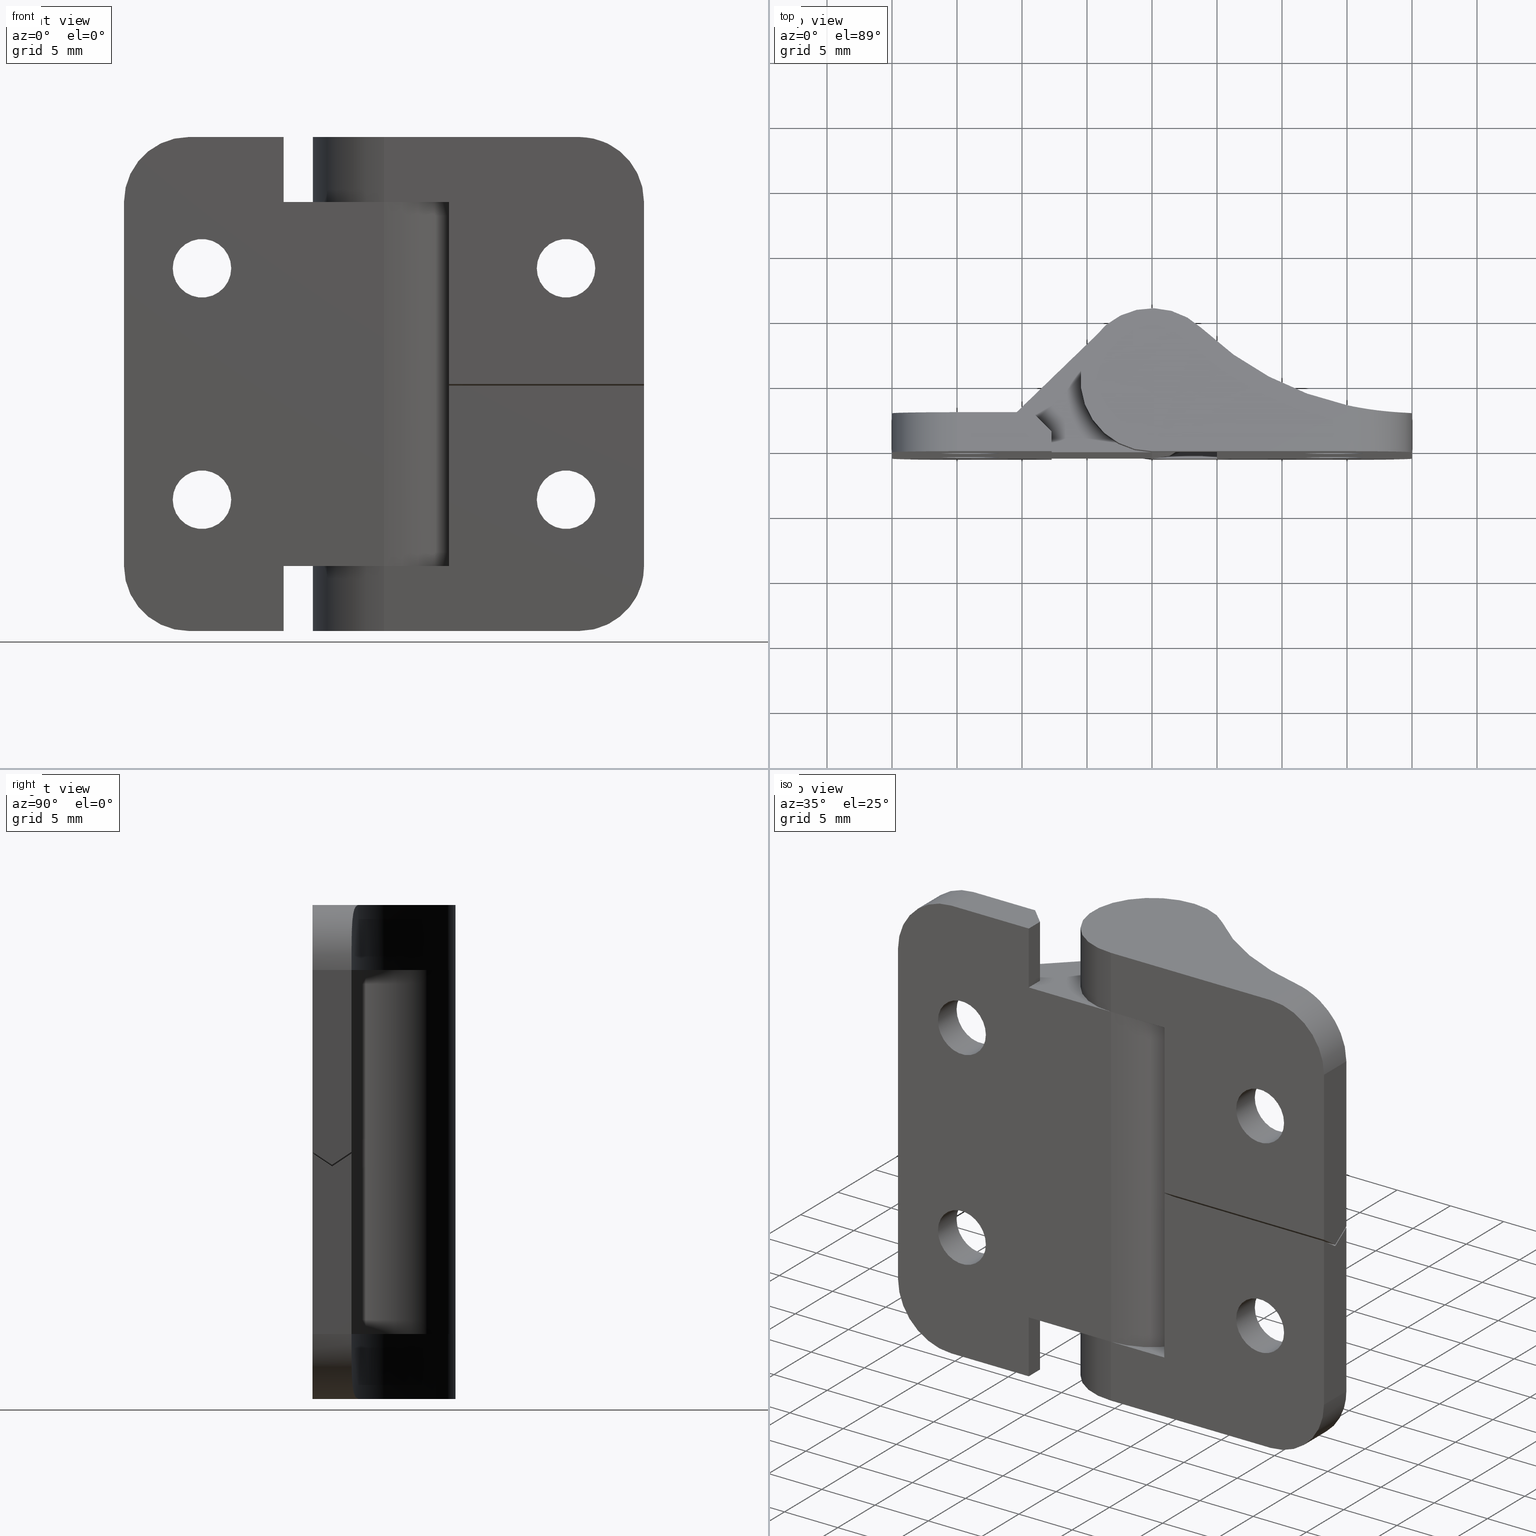
[diagram: canonical four-view strip — front | top / right | iso, engineering-drawing reading convention]
A machine part, canonical four-view strip (front | top / right | iso — engineering-drawing reading convention). The complete STEP part file that produces these views, byte-faithful:
ISO-10303-21;
HEADER;
/* Generated by software containing ST-Developer
 * from STEP Tools, Inc. (www.steptools.com) 
 */

FILE_DESCRIPTION(
/* description */ (''),
/* implementation_level */ '2;1');

FILE_NAME(
/* name */ '\\\\SYNOLOGYNAS\\web\\db2\\H-TC5057\\\X2\B3C4BA74\X0\\\H-T
C3840.stp',
/* time_stamp */ '2025-12-15T14:14:22+09:00',
/* author */ ('user'),
/* organization */ (''),
/* preprocessor_version */ 'ST-DEVELOPER v15.6',
/* originating_system */ 'Autodesk Inventor 2015',
/* authorisation */ '');

FILE_SCHEMA (('AUTOMOTIVE_DESIGN { 1 0 10303 214 3 1 1 }'));
ENDSEC;

DATA;
#10=MECHANICAL_DESIGN_GEOMETRIC_PRESENTATION_REPRESENTATION('',(#28,#29,
#30),#1413);
#11=ITEM_DEFINED_TRANSFORMATION($,$,#830,#912);
#12=ITEM_DEFINED_TRANSFORMATION($,$,#868,#913);
#13=(
REPRESENTATION_RELATIONSHIP($,$,#1425,#1427)
REPRESENTATION_RELATIONSHIP_WITH_TRANSFORMATION(#11)
SHAPE_REPRESENTATION_RELATIONSHIP()
);
#14=(
REPRESENTATION_RELATIONSHIP($,$,#1426,#1427)
REPRESENTATION_RELATIONSHIP_WITH_TRANSFORMATION(#12)
SHAPE_REPRESENTATION_RELATIONSHIP()
);
#15=CONTEXT_DEPENDENT_SHAPE_REPRESENTATION(#13,#1423);
#16=CONTEXT_DEPENDENT_SHAPE_REPRESENTATION(#14,#1424);
#17=NEXT_ASSEMBLY_USAGE_OCCURRENCE('\X2\B0A0AC1C\X0\1:1',$,$,#1431,#1429,
$);
#18=NEXT_ASSEMBLY_USAGE_OCCURRENCE('\X2\B0A0AC1C\X0\2-1:1',$,$,#1431,#1430,
$);
#19=DIMENSIONAL_EXPONENTS(0.,0.,0.,0.,0.,0.,0.);
#20=(
CONVERSION_BASED_UNIT('degree',#21)
NAMED_UNIT(#19)
PLANE_ANGLE_UNIT()
);
#21=PLANE_ANGLE_MEASURE_WITH_UNIT(PLANE_ANGLE_MEASURE(0.01745329252),#1416);
#22=B_SPLINE_CURVE_WITH_KNOTS('',3,(#1307,#1308,#1309,#1310,#1311,#1312,
#1313,#1314,#1315,#1316),.UNSPECIFIED.,.F.,.F.,(4,2,2,2,4),(-0.757145459144854,
-0.566973208028317,-0.37680095691178,-0.18840047845589,0.),
 .UNSPECIFIED.);
#23=B_SPLINE_CURVE_WITH_KNOTS('',3,(#1358,#1359,#1360,#1361,#1362,#1363,
#1364,#1365,#1366,#1367),.UNSPECIFIED.,.F.,.F.,(4,2,2,2,4),(-1.53072872255725,
-1.34232824410136,-1.15392776564547,-0.963755514528929,-0.773583263412392),
 .UNSPECIFIED.);
#24=SHAPE_REPRESENTATION_RELATIONSHIP('SRR','None',#1425,#26);
#25=SHAPE_REPRESENTATION_RELATIONSHIP('SRR','None',#1426,#27);
#26=ADVANCED_BREP_SHAPE_REPRESENTATION($,(#31),#1410);
#27=ADVANCED_BREP_SHAPE_REPRESENTATION($,(#32,#33),#1411);
#28=STYLED_ITEM('',(#1444),#31);
#29=STYLED_ITEM('',(#1445),#32);
#30=STYLED_ITEM('',(#1445),#33);
#31=MANIFOLD_SOLID_BREP('\X2\C194B9ACB4DC\X0\2',#827);
#32=MANIFOLD_SOLID_BREP('\X2\C194B9ACB4DC\X0\3',#828);
#33=MANIFOLD_SOLID_BREP('\X2\C194B9ACB4DC\X0\3_1',#829);
#34=CONICAL_SURFACE('',#842,2.5,0.785398163397448);
#35=CONICAL_SURFACE('',#846,2.5,0.785398163397448);
#36=CONICAL_SURFACE('',#875,2.5,0.785398163397448);
#37=CONICAL_SURFACE('',#903,2.5,0.785398163397448);
#38=FACE_BOUND('',#278,.T.);
#39=FACE_BOUND('',#279,.T.);
#40=FACE_BOUND('',#281,.T.);
#41=FACE_BOUND('',#283,.T.);
#42=FACE_BOUND('',#285,.T.);
#43=FACE_BOUND('',#287,.T.);
#44=FACE_BOUND('',#290,.T.);
#45=FACE_BOUND('',#291,.T.);
#46=FACE_BOUND('',#308,.T.);
#47=FACE_BOUND('',#310,.T.);
#48=FACE_BOUND('',#312,.T.);
#49=FACE_BOUND('',#317,.T.);
#50=FACE_BOUND('',#327,.T.);
#51=FACE_BOUND('',#329,.T.);
#52=FACE_BOUND('',#332,.T.);
#53=FACE_BOUND('',#334,.T.);
#54=LINE('',#1168,#127);
#55=LINE('',#1170,#128);
#56=LINE('',#1172,#129);
#57=LINE('',#1174,#130);
#58=LINE('',#1178,#131);
#59=LINE('',#1182,#132);
#60=LINE('',#1184,#133);
#61=LINE('',#1186,#134);
#62=LINE('',#1187,#135);
#63=LINE('',#1188,#136);
#64=LINE('',#1209,#137);
#65=LINE('',#1210,#138);
#66=LINE('',#1213,#139);
#67=LINE('',#1217,#140);
#68=LINE('',#1219,#141);
#69=LINE('',#1221,#142);
#70=LINE('',#1223,#143);
#71=LINE('',#1225,#144);
#72=LINE('',#1227,#145);
#73=LINE('',#1228,#146);
#74=LINE('',#1230,#147);
#75=LINE('',#1232,#148);
#76=LINE('',#1235,#149);
#77=LINE('',#1237,#150);
#78=LINE('',#1238,#151);
#79=LINE('',#1240,#152);
#80=LINE('',#1241,#153);
#81=LINE('',#1244,#154);
#82=LINE('',#1248,#155);
#83=LINE('',#1252,#156);
#84=LINE('',#1254,#157);
#85=LINE('',#1255,#158);
#86=LINE('',#1257,#159);
#87=LINE('',#1258,#160);
#88=LINE('',#1260,#161);
#89=LINE('',#1268,#162);
#90=LINE('',#1270,#163);
#91=LINE('',#1272,#164);
#92=LINE('',#1273,#165);
#93=LINE('',#1276,#166);
#94=LINE('',#1278,#167);
#95=LINE('',#1279,#168);
#96=LINE('',#1282,#169);
#97=LINE('',#1284,#170);
#98=LINE('',#1285,#171);
#99=LINE('',#1288,#172);
#100=LINE('',#1290,#173);
#101=LINE('',#1292,#174);
#102=LINE('',#1294,#175);
#103=LINE('',#1306,#176);
#104=LINE('',#1321,#177);
#105=LINE('',#1325,#178);
#106=LINE('',#1326,#179);
#107=LINE('',#1328,#180);
#108=LINE('',#1337,#181);
#109=LINE('',#1342,#182);
#110=LINE('',#1348,#183);
#111=LINE('',#1350,#184);
#112=LINE('',#1352,#185);
#113=LINE('',#1355,#186);
#114=LINE('',#1356,#187);
#115=LINE('',#1371,#188);
#116=LINE('',#1383,#189);
#117=LINE('',#1385,#190);
#118=LINE('',#1386,#191);
#119=LINE('',#1387,#192);
#120=LINE('',#1390,#193);
#121=LINE('',#1391,#194);
#122=LINE('',#1394,#195);
#123=LINE('',#1395,#196);
#124=LINE('',#1398,#197);
#125=LINE('',#1399,#198);
#126=LINE('',#1401,#199);
#127=VECTOR('',#930,1.5292857857286);
#128=VECTOR('',#931,1.27999999999999);
#129=VECTOR('',#932,5.);
#130=VECTOR('',#933,5.77999999999999);
#131=VECTOR('',#936,28.);
#132=VECTOR('',#939,5.77999999999999);
#133=VECTOR('',#940,5.);
#134=VECTOR('',#941,1.27999999999999);
#135=VECTOR('',#942,1.5292857857286);
#136=VECTOR('',#943,10.6585715714571);
#137=VECTOR('',#968,3.);
#138=VECTOR('',#969,3.);
#139=VECTOR('',#972,28.);
#140=VECTOR('',#975,7.28);
#141=VECTOR('',#976,5.);
#142=VECTOR('',#977,7.72);
#143=VECTOR('',#978,28.);
#144=VECTOR('',#979,7.72);
#145=VECTOR('',#980,5.);
#146=VECTOR('',#981,7.28);
#147=VECTOR('',#984,3.);
#148=VECTOR('',#987,3.);
#149=VECTOR('',#990,2.12132034355965);
#150=VECTOR('',#991,2.12132034355965);
#151=VECTOR('',#992,5.);
#152=VECTOR('',#995,1.5);
#153=VECTOR('',#996,1.5);
#154=VECTOR('',#999,9.28708781050336);
#155=VECTOR('',#1004,28.);
#156=VECTOR('',#1009,2.12132034355965);
#157=VECTOR('',#1010,5.);
#158=VECTOR('',#1011,2.12132034355965);
#159=VECTOR('',#1014,1.5);
#160=VECTOR('',#1015,1.5);
#161=VECTOR('',#1018,9.28708781050336);
#162=VECTOR('',#1029,1.80277563773199);
#163=VECTOR('',#1030,15.);
#164=VECTOR('',#1031,1.80277563773199);
#165=VECTOR('',#1032,15.);
#166=VECTOR('',#1035,1.80277563773199);
#167=VECTOR('',#1036,15.);
#168=VECTOR('',#1037,1.80277563773199);
#169=VECTOR('',#1040,13.8798149574845);
#170=VECTOR('',#1041,3.);
#171=VECTOR('',#1042,13.8798149574845);
#172=VECTOR('',#1045,13.8798149574845);
#173=VECTOR('',#1046,5.);
#174=VECTOR('',#1047,5.);
#175=VECTOR('',#1048,15.);
#176=VECTOR('',#1063,3.53807499358993);
#177=VECTOR('',#1068,5.);
#178=VECTOR('',#1073,13.8798149574845);
#179=VECTOR('',#1074,3.);
#180=VECTOR('',#1077,15.);
#181=VECTOR('',#1090,3.53807499358993);
#182=VECTOR('',#1095,15.);
#183=VECTOR('',#1100,15.);
#184=VECTOR('',#1101,3.);
#185=VECTOR('',#1102,5.);
#186=VECTOR('',#1107,5.);
#187=VECTOR('',#1108,5.);
#188=VECTOR('',#1115,3.);
#189=VECTOR('',#1128,1.802775637732);
#190=VECTOR('',#1129,1.802775637732);
#191=VECTOR('',#1130,14.);
#192=VECTOR('',#1131,14.);
#193=VECTOR('',#1134,15.);
#194=VECTOR('',#1135,14.);
#195=VECTOR('',#1138,15.);
#196=VECTOR('',#1139,14.);
#197=VECTOR('',#1142,1.80277563773199);
#198=VECTOR('',#1143,1.802775637732);
#199=VECTOR('',#1146,15.);
#200=PLANE('',#837);
#201=PLANE('',#852);
#202=PLANE('',#854);
#203=PLANE('',#856);
#204=PLANE('',#857);
#205=PLANE('',#858);
#206=PLANE('',#862);
#207=PLANE('',#863);
#208=PLANE('',#864);
#209=PLANE('',#865);
#210=PLANE('',#866);
#211=PLANE('',#867);
#212=PLANE('',#869);
#213=PLANE('',#870);
#214=PLANE('',#871);
#215=PLANE('',#872);
#216=PLANE('',#883);
#217=PLANE('',#884);
#218=PLANE('',#888);
#219=PLANE('',#889);
#220=PLANE('',#890);
#221=PLANE('',#893);
#222=PLANE('',#905);
#223=PLANE('',#906);
#224=PLANE('',#907);
#225=PLANE('',#908);
#226=PLANE('',#909);
#227=PLANE('',#910);
#228=FACE_OUTER_BOUND('',#275,.T.);
#229=FACE_OUTER_BOUND('',#276,.T.);
#230=FACE_OUTER_BOUND('',#277,.T.);
#231=FACE_OUTER_BOUND('',#280,.T.);
#232=FACE_OUTER_BOUND('',#282,.T.);
#233=FACE_OUTER_BOUND('',#284,.T.);
#234=FACE_OUTER_BOUND('',#286,.T.);
#235=FACE_OUTER_BOUND('',#288,.T.);
#236=FACE_OUTER_BOUND('',#289,.T.);
#237=FACE_OUTER_BOUND('',#292,.T.);
#238=FACE_OUTER_BOUND('',#293,.T.);
#239=FACE_OUTER_BOUND('',#294,.T.);
#240=FACE_OUTER_BOUND('',#295,.T.);
#241=FACE_OUTER_BOUND('',#296,.T.);
#242=FACE_OUTER_BOUND('',#297,.T.);
#243=FACE_OUTER_BOUND('',#298,.T.);
#244=FACE_OUTER_BOUND('',#299,.T.);
#245=FACE_OUTER_BOUND('',#300,.T.);
#246=FACE_OUTER_BOUND('',#301,.T.);
#247=FACE_OUTER_BOUND('',#302,.T.);
#248=FACE_OUTER_BOUND('',#303,.T.);
#249=FACE_OUTER_BOUND('',#304,.T.);
#250=FACE_OUTER_BOUND('',#305,.T.);
#251=FACE_OUTER_BOUND('',#306,.T.);
#252=FACE_OUTER_BOUND('',#307,.T.);
#253=FACE_OUTER_BOUND('',#309,.T.);
#254=FACE_OUTER_BOUND('',#311,.T.);
#255=FACE_OUTER_BOUND('',#313,.T.);
#256=FACE_OUTER_BOUND('',#314,.T.);
#257=FACE_OUTER_BOUND('',#315,.T.);
#258=FACE_OUTER_BOUND('',#316,.T.);
#259=FACE_OUTER_BOUND('',#318,.T.);
#260=FACE_OUTER_BOUND('',#319,.T.);
#261=FACE_OUTER_BOUND('',#320,.T.);
#262=FACE_OUTER_BOUND('',#321,.T.);
#263=FACE_OUTER_BOUND('',#322,.T.);
#264=FACE_OUTER_BOUND('',#323,.T.);
#265=FACE_OUTER_BOUND('',#324,.T.);
#266=FACE_OUTER_BOUND('',#325,.T.);
#267=FACE_OUTER_BOUND('',#326,.T.);
#268=FACE_OUTER_BOUND('',#328,.T.);
#269=FACE_OUTER_BOUND('',#330,.T.);
#270=FACE_OUTER_BOUND('',#331,.T.);
#271=FACE_OUTER_BOUND('',#333,.T.);
#272=FACE_OUTER_BOUND('',#335,.T.);
#273=FACE_OUTER_BOUND('',#336,.T.);
#274=FACE_OUTER_BOUND('',#337,.T.);
#275=EDGE_LOOP('',(#551,#552));
#276=EDGE_LOOP('',(#553,#554));
#277=EDGE_LOOP('',(#555,#556,#557,#558,#559,#560,#561,#562,#563,#564,#565,
#566,#567,#568));
#278=EDGE_LOOP('',(#569));
#279=EDGE_LOOP('',(#570));
#280=EDGE_LOOP('',(#571));
#281=EDGE_LOOP('',(#572));
#282=EDGE_LOOP('',(#573));
#283=EDGE_LOOP('',(#574));
#284=EDGE_LOOP('',(#575));
#285=EDGE_LOOP('',(#576));
#286=EDGE_LOOP('',(#577));
#287=EDGE_LOOP('',(#578));
#288=EDGE_LOOP('',(#579,#580,#581,#582));
#289=EDGE_LOOP('',(#583,#584,#585,#586,#587,#588,#589,#590,#591,#592));
#290=EDGE_LOOP('',(#593));
#291=EDGE_LOOP('',(#594));
#292=EDGE_LOOP('',(#595,#596,#597,#598));
#293=EDGE_LOOP('',(#599,#600,#601,#602));
#294=EDGE_LOOP('',(#603,#604,#605,#606));
#295=EDGE_LOOP('',(#607,#608,#609,#610));
#296=EDGE_LOOP('',(#611,#612,#613,#614,#615,#616));
#297=EDGE_LOOP('',(#617,#618,#619,#620));
#298=EDGE_LOOP('',(#621,#622,#623,#624));
#299=EDGE_LOOP('',(#625,#626,#627,#628));
#300=EDGE_LOOP('',(#629,#630,#631,#632,#633,#634));
#301=EDGE_LOOP('',(#635,#636,#637,#638,#639));
#302=EDGE_LOOP('',(#640,#641,#642,#643,#644,#645,#646,#647));
#303=EDGE_LOOP('',(#648,#649,#650,#651,#652));
#304=EDGE_LOOP('',(#653,#654,#655,#656));
#305=EDGE_LOOP('',(#657,#658,#659,#660));
#306=EDGE_LOOP('',(#661,#662,#663,#664,#665));
#307=EDGE_LOOP('',(#666,#667,#668,#669,#670,#671,#672));
#308=EDGE_LOOP('',(#673));
#309=EDGE_LOOP('',(#674));
#310=EDGE_LOOP('',(#675));
#311=EDGE_LOOP('',(#676));
#312=EDGE_LOOP('',(#677));
#313=EDGE_LOOP('',(#678,#679,#680,#681));
#314=EDGE_LOOP('',(#682,#683,#684,#685));
#315=EDGE_LOOP('',(#686,#687,#688,#689,#690));
#316=EDGE_LOOP('',(#691,#692,#693,#694));
#317=EDGE_LOOP('',(#695));
#318=EDGE_LOOP('',(#696,#697,#698,#699));
#319=EDGE_LOOP('',(#700,#701,#702,#703,#704));
#320=EDGE_LOOP('',(#705,#706,#707,#708));
#321=EDGE_LOOP('',(#709,#710,#711,#712));
#322=EDGE_LOOP('',(#713,#714,#715,#716,#717));
#323=EDGE_LOOP('',(#718,#719,#720,#721));
#324=EDGE_LOOP('',(#722,#723,#724,#725));
#325=EDGE_LOOP('',(#726,#727,#728,#729));
#326=EDGE_LOOP('',(#730));
#327=EDGE_LOOP('',(#731));
#328=EDGE_LOOP('',(#732));
#329=EDGE_LOOP('',(#733));
#330=EDGE_LOOP('',(#734,#735,#736,#737,#738));
#331=EDGE_LOOP('',(#739,#740,#741,#742,#743,#744,#745));
#332=EDGE_LOOP('',(#746));
#333=EDGE_LOOP('',(#747,#748,#749,#750));
#334=EDGE_LOOP('',(#751));
#335=EDGE_LOOP('',(#752,#753,#754,#755,#756));
#336=EDGE_LOOP('',(#757,#758,#759,#760));
#337=EDGE_LOOP('',(#761,#762,#763,#764));
#338=CIRCLE('',#833,5.);
#339=CIRCLE('',#836,5.);
#340=CIRCLE('',#838,5.);
#341=CIRCLE('',#839,5.);
#342=CIRCLE('',#840,2.75);
#343=CIRCLE('',#841,2.75);
#344=CIRCLE('',#843,2.25);
#345=CIRCLE('',#845,2.25);
#346=CIRCLE('',#847,2.25);
#347=CIRCLE('',#849,2.25);
#348=CIRCLE('',#851,5.);
#349=CIRCLE('',#853,5.);
#350=CIRCLE('',#859,5.5);
#351=CIRCLE('',#861,5.5);
#352=CIRCLE('',#873,5.);
#353=CIRCLE('',#874,2.25);
#354=CIRCLE('',#876,2.25);
#355=CIRCLE('',#877,2.75);
#356=CIRCLE('',#881,23.5);
#357=CIRCLE('',#882,23.5);
#358=CIRCLE('',#886,5.5);
#359=CIRCLE('',#887,5.5);
#360=CIRCLE('',#891,23.5);
#361=CIRCLE('',#892,5.5);
#362=CIRCLE('',#894,23.5);
#363=CIRCLE('',#895,5.5);
#364=CIRCLE('',#899,5.);
#365=CIRCLE('',#901,2.25);
#366=CIRCLE('',#902,2.25);
#367=CIRCLE('',#904,2.75);
#368=ELLIPSE('',#832,6.95402637564283,5.);
#369=ELLIPSE('',#835,6.95402637564283,5.);
#370=VERTEX_POINT('',#1157);
#371=VERTEX_POINT('',#1158);
#372=VERTEX_POINT('',#1162);
#373=VERTEX_POINT('',#1163);
#374=VERTEX_POINT('',#1167);
#375=VERTEX_POINT('',#1169);
#376=VERTEX_POINT('',#1171);
#377=VERTEX_POINT('',#1173);
#378=VERTEX_POINT('',#1175);
#379=VERTEX_POINT('',#1177);
#380=VERTEX_POINT('',#1179);
#381=VERTEX_POINT('',#1181);
#382=VERTEX_POINT('',#1183);
#383=VERTEX_POINT('',#1185);
#384=VERTEX_POINT('',#1189);
#385=VERTEX_POINT('',#1191);
#386=VERTEX_POINT('',#1194);
#387=VERTEX_POINT('',#1197);
#388=VERTEX_POINT('',#1200);
#389=VERTEX_POINT('',#1203);
#390=VERTEX_POINT('',#1206);
#391=VERTEX_POINT('',#1207);
#392=VERTEX_POINT('',#1212);
#393=VERTEX_POINT('',#1214);
#394=VERTEX_POINT('',#1216);
#395=VERTEX_POINT('',#1218);
#396=VERTEX_POINT('',#1220);
#397=VERTEX_POINT('',#1222);
#398=VERTEX_POINT('',#1224);
#399=VERTEX_POINT('',#1226);
#400=VERTEX_POINT('',#1234);
#401=VERTEX_POINT('',#1236);
#402=VERTEX_POINT('',#1243);
#403=VERTEX_POINT('',#1247);
#404=VERTEX_POINT('',#1251);
#405=VERTEX_POINT('',#1253);
#406=VERTEX_POINT('',#1266);
#407=VERTEX_POINT('',#1267);
#408=VERTEX_POINT('',#1269);
#409=VERTEX_POINT('',#1271);
#410=VERTEX_POINT('',#1275);
#411=VERTEX_POINT('',#1277);
#412=VERTEX_POINT('',#1281);
#413=VERTEX_POINT('',#1283);
#414=VERTEX_POINT('',#1287);
#415=VERTEX_POINT('',#1289);
#416=VERTEX_POINT('',#1291);
#417=VERTEX_POINT('',#1293);
#418=VERTEX_POINT('',#1296);
#419=VERTEX_POINT('',#1299);
#420=VERTEX_POINT('',#1301);
#421=VERTEX_POINT('',#1305);
#422=VERTEX_POINT('',#1318);
#423=VERTEX_POINT('',#1320);
#424=VERTEX_POINT('',#1324);
#425=VERTEX_POINT('',#1335);
#426=VERTEX_POINT('',#1336);
#427=VERTEX_POINT('',#1338);
#428=VERTEX_POINT('',#1340);
#429=VERTEX_POINT('',#1344);
#430=VERTEX_POINT('',#1345);
#431=VERTEX_POINT('',#1347);
#432=VERTEX_POINT('',#1349);
#433=VERTEX_POINT('',#1351);
#434=VERTEX_POINT('',#1369);
#435=VERTEX_POINT('',#1373);
#436=VERTEX_POINT('',#1375);
#437=VERTEX_POINT('',#1378);
#438=VERTEX_POINT('',#1381);
#439=VERTEX_POINT('',#1382);
#440=VERTEX_POINT('',#1384);
#441=VERTEX_POINT('',#1389);
#442=VERTEX_POINT('',#1393);
#443=VERTEX_POINT('',#1397);
#444=EDGE_CURVE('',#370,#371,#368,.T.);
#445=EDGE_CURVE('',#370,#371,#338,.T.);
#446=EDGE_CURVE('',#372,#373,#369,.T.);
#447=EDGE_CURVE('',#372,#373,#339,.T.);
#448=EDGE_CURVE('',#374,#370,#54,.T.);
#449=EDGE_CURVE('',#375,#374,#55,.T.);
#450=EDGE_CURVE('',#376,#375,#56,.T.);
#451=EDGE_CURVE('',#377,#376,#57,.T.);
#452=EDGE_CURVE('',#378,#377,#340,.T.);
#453=EDGE_CURVE('',#378,#379,#58,.T.);
#454=EDGE_CURVE('',#380,#379,#341,.T.);
#455=EDGE_CURVE('',#381,#380,#59,.T.);
#456=EDGE_CURVE('',#381,#382,#60,.T.);
#457=EDGE_CURVE('',#382,#383,#61,.T.);
#458=EDGE_CURVE('',#373,#383,#62,.T.);
#459=EDGE_CURVE('',#371,#372,#63,.T.);
#460=EDGE_CURVE('',#384,#384,#342,.T.);
#461=EDGE_CURVE('',#385,#385,#343,.T.);
#462=EDGE_CURVE('',#386,#386,#344,.T.);
#463=EDGE_CURVE('',#387,#387,#345,.T.);
#464=EDGE_CURVE('',#388,#388,#346,.T.);
#465=EDGE_CURVE('',#389,#389,#347,.T.);
#466=EDGE_CURVE('',#390,#391,#348,.T.);
#467=EDGE_CURVE('',#391,#380,#64,.T.);
#468=EDGE_CURVE('',#379,#390,#65,.T.);
#469=EDGE_CURVE('',#392,#390,#66,.T.);
#470=EDGE_CURVE('',#393,#392,#349,.T.);
#471=EDGE_CURVE('',#394,#393,#67,.T.);
#472=EDGE_CURVE('',#394,#395,#68,.T.);
#473=EDGE_CURVE('',#395,#396,#69,.T.);
#474=EDGE_CURVE('',#396,#397,#70,.T.);
#475=EDGE_CURVE('',#397,#398,#71,.T.);
#476=EDGE_CURVE('',#398,#399,#72,.T.);
#477=EDGE_CURVE('',#391,#399,#73,.T.);
#478=EDGE_CURVE('',#392,#378,#74,.T.);
#479=EDGE_CURVE('',#377,#393,#75,.T.);
#480=EDGE_CURVE('',#376,#400,#76,.T.);
#481=EDGE_CURVE('',#401,#375,#77,.T.);
#482=EDGE_CURVE('',#400,#401,#78,.T.);
#483=EDGE_CURVE('',#400,#394,#79,.T.);
#484=EDGE_CURVE('',#395,#401,#80,.T.);
#485=EDGE_CURVE('',#402,#374,#81,.T.);
#486=EDGE_CURVE('',#396,#402,#350,.T.);
#487=EDGE_CURVE('',#403,#402,#82,.T.);
#488=EDGE_CURVE('',#403,#397,#351,.T.);
#489=EDGE_CURVE('',#404,#381,#83,.T.);
#490=EDGE_CURVE('',#404,#405,#84,.T.);
#491=EDGE_CURVE('',#405,#382,#85,.T.);
#492=EDGE_CURVE('',#399,#404,#86,.T.);
#493=EDGE_CURVE('',#398,#405,#87,.T.);
#494=EDGE_CURVE('',#383,#403,#88,.T.);
#495=EDGE_CURVE('',#406,#407,#89,.T.);
#496=EDGE_CURVE('',#408,#406,#90,.T.);
#497=EDGE_CURVE('',#409,#408,#91,.T.);
#498=EDGE_CURVE('',#407,#409,#92,.T.);
#499=EDGE_CURVE('',#410,#406,#93,.T.);
#500=EDGE_CURVE('',#411,#410,#94,.T.);
#501=EDGE_CURVE('',#408,#411,#95,.T.);
#502=EDGE_CURVE('',#411,#412,#96,.T.);
#503=EDGE_CURVE('',#413,#412,#97,.T.);
#504=EDGE_CURVE('',#409,#413,#98,.T.);
#505=EDGE_CURVE('',#410,#414,#99,.T.);
#506=EDGE_CURVE('',#414,#415,#100,.T.);
#507=EDGE_CURVE('',#415,#416,#101,.T.);
#508=EDGE_CURVE('',#417,#416,#102,.T.);
#509=EDGE_CURVE('',#412,#417,#352,.T.);
#510=EDGE_CURVE('',#418,#418,#353,.T.);
#511=EDGE_CURVE('',#419,#419,#354,.T.);
#512=EDGE_CURVE('',#420,#420,#355,.T.);
#513=EDGE_CURVE('',#417,#421,#103,.T.);
#514=EDGE_CURVE('',#421,#413,#22,.T.);
#515=EDGE_CURVE('',#422,#421,#356,.T.);
#516=EDGE_CURVE('',#422,#423,#104,.T.);
#517=EDGE_CURVE('',#423,#413,#357,.T.);
#518=EDGE_CURVE('',#424,#407,#105,.T.);
#519=EDGE_CURVE('',#424,#414,#106,.T.);
#520=EDGE_CURVE('',#413,#424,#107,.T.);
#521=EDGE_CURVE('',#415,#423,#358,.T.);
#522=EDGE_CURVE('',#416,#422,#359,.T.);
#523=EDGE_CURVE('',#425,#426,#108,.T.);
#524=EDGE_CURVE('',#425,#427,#360,.T.);
#525=EDGE_CURVE('',#427,#428,#361,.T.);
#526=EDGE_CURVE('',#428,#426,#109,.T.);
#527=EDGE_CURVE('',#429,#430,#362,.T.);
#528=EDGE_CURVE('',#431,#429,#110,.T.);
#529=EDGE_CURVE('',#431,#432,#111,.T.);
#530=EDGE_CURVE('',#433,#432,#112,.T.);
#531=EDGE_CURVE('',#430,#433,#363,.T.);
#532=EDGE_CURVE('',#428,#433,#113,.T.);
#533=EDGE_CURVE('',#430,#427,#114,.T.);
#534=EDGE_CURVE('',#429,#425,#23,.T.);
#535=EDGE_CURVE('',#426,#434,#364,.T.);
#536=EDGE_CURVE('',#434,#429,#115,.T.);
#537=EDGE_CURVE('',#435,#435,#365,.T.);
#538=EDGE_CURVE('',#436,#436,#366,.T.);
#539=EDGE_CURVE('',#437,#437,#367,.T.);
#540=EDGE_CURVE('',#438,#439,#116,.T.);
#541=EDGE_CURVE('',#439,#440,#117,.T.);
#542=EDGE_CURVE('',#432,#440,#118,.T.);
#543=EDGE_CURVE('',#438,#431,#119,.T.);
#544=EDGE_CURVE('',#440,#441,#120,.T.);
#545=EDGE_CURVE('',#434,#441,#121,.T.);
#546=EDGE_CURVE('',#442,#438,#122,.T.);
#547=EDGE_CURVE('',#429,#442,#123,.T.);
#548=EDGE_CURVE('',#443,#442,#124,.T.);
#549=EDGE_CURVE('',#441,#443,#125,.T.);
#550=EDGE_CURVE('',#443,#439,#126,.T.);
#551=ORIENTED_EDGE('',*,*,#444,.F.);
#552=ORIENTED_EDGE('',*,*,#445,.T.);
#553=ORIENTED_EDGE('',*,*,#446,.F.);
#554=ORIENTED_EDGE('',*,*,#447,.T.);
#555=ORIENTED_EDGE('',*,*,#448,.F.);
#556=ORIENTED_EDGE('',*,*,#449,.F.);
#557=ORIENTED_EDGE('',*,*,#450,.F.);
#558=ORIENTED_EDGE('',*,*,#451,.F.);
#559=ORIENTED_EDGE('',*,*,#452,.F.);
#560=ORIENTED_EDGE('',*,*,#453,.T.);
#561=ORIENTED_EDGE('',*,*,#454,.F.);
#562=ORIENTED_EDGE('',*,*,#455,.F.);
#563=ORIENTED_EDGE('',*,*,#456,.T.);
#564=ORIENTED_EDGE('',*,*,#457,.T.);
#565=ORIENTED_EDGE('',*,*,#458,.F.);
#566=ORIENTED_EDGE('',*,*,#447,.F.);
#567=ORIENTED_EDGE('',*,*,#459,.F.);
#568=ORIENTED_EDGE('',*,*,#445,.F.);
#569=ORIENTED_EDGE('',*,*,#460,.T.);
#570=ORIENTED_EDGE('',*,*,#461,.T.);
#571=ORIENTED_EDGE('',*,*,#462,.F.);
#572=ORIENTED_EDGE('',*,*,#460,.F.);
#573=ORIENTED_EDGE('',*,*,#463,.F.);
#574=ORIENTED_EDGE('',*,*,#462,.T.);
#575=ORIENTED_EDGE('',*,*,#464,.F.);
#576=ORIENTED_EDGE('',*,*,#461,.F.);
#577=ORIENTED_EDGE('',*,*,#465,.F.);
#578=ORIENTED_EDGE('',*,*,#464,.T.);
#579=ORIENTED_EDGE('',*,*,#466,.T.);
#580=ORIENTED_EDGE('',*,*,#467,.T.);
#581=ORIENTED_EDGE('',*,*,#454,.T.);
#582=ORIENTED_EDGE('',*,*,#468,.T.);
#583=ORIENTED_EDGE('',*,*,#466,.F.);
#584=ORIENTED_EDGE('',*,*,#469,.F.);
#585=ORIENTED_EDGE('',*,*,#470,.F.);
#586=ORIENTED_EDGE('',*,*,#471,.F.);
#587=ORIENTED_EDGE('',*,*,#472,.T.);
#588=ORIENTED_EDGE('',*,*,#473,.T.);
#589=ORIENTED_EDGE('',*,*,#474,.T.);
#590=ORIENTED_EDGE('',*,*,#475,.T.);
#591=ORIENTED_EDGE('',*,*,#476,.T.);
#592=ORIENTED_EDGE('',*,*,#477,.F.);
#593=ORIENTED_EDGE('',*,*,#463,.T.);
#594=ORIENTED_EDGE('',*,*,#465,.T.);
#595=ORIENTED_EDGE('',*,*,#468,.F.);
#596=ORIENTED_EDGE('',*,*,#453,.F.);
#597=ORIENTED_EDGE('',*,*,#478,.F.);
#598=ORIENTED_EDGE('',*,*,#469,.T.);
#599=ORIENTED_EDGE('',*,*,#452,.T.);
#600=ORIENTED_EDGE('',*,*,#479,.T.);
#601=ORIENTED_EDGE('',*,*,#470,.T.);
#602=ORIENTED_EDGE('',*,*,#478,.T.);
#603=ORIENTED_EDGE('',*,*,#480,.F.);
#604=ORIENTED_EDGE('',*,*,#450,.T.);
#605=ORIENTED_EDGE('',*,*,#481,.F.);
#606=ORIENTED_EDGE('',*,*,#482,.F.);
#607=ORIENTED_EDGE('',*,*,#483,.F.);
#608=ORIENTED_EDGE('',*,*,#482,.T.);
#609=ORIENTED_EDGE('',*,*,#484,.F.);
#610=ORIENTED_EDGE('',*,*,#472,.F.);
#611=ORIENTED_EDGE('',*,*,#485,.F.);
#612=ORIENTED_EDGE('',*,*,#486,.F.);
#613=ORIENTED_EDGE('',*,*,#473,.F.);
#614=ORIENTED_EDGE('',*,*,#484,.T.);
#615=ORIENTED_EDGE('',*,*,#481,.T.);
#616=ORIENTED_EDGE('',*,*,#449,.T.);
#617=ORIENTED_EDGE('',*,*,#486,.T.);
#618=ORIENTED_EDGE('',*,*,#487,.F.);
#619=ORIENTED_EDGE('',*,*,#488,.T.);
#620=ORIENTED_EDGE('',*,*,#474,.F.);
#621=ORIENTED_EDGE('',*,*,#489,.F.);
#622=ORIENTED_EDGE('',*,*,#490,.T.);
#623=ORIENTED_EDGE('',*,*,#491,.T.);
#624=ORIENTED_EDGE('',*,*,#456,.F.);
#625=ORIENTED_EDGE('',*,*,#492,.F.);
#626=ORIENTED_EDGE('',*,*,#476,.F.);
#627=ORIENTED_EDGE('',*,*,#493,.T.);
#628=ORIENTED_EDGE('',*,*,#490,.F.);
#629=ORIENTED_EDGE('',*,*,#494,.F.);
#630=ORIENTED_EDGE('',*,*,#457,.F.);
#631=ORIENTED_EDGE('',*,*,#491,.F.);
#632=ORIENTED_EDGE('',*,*,#493,.F.);
#633=ORIENTED_EDGE('',*,*,#475,.F.);
#634=ORIENTED_EDGE('',*,*,#488,.F.);
#635=ORIENTED_EDGE('',*,*,#467,.F.);
#636=ORIENTED_EDGE('',*,*,#477,.T.);
#637=ORIENTED_EDGE('',*,*,#492,.T.);
#638=ORIENTED_EDGE('',*,*,#489,.T.);
#639=ORIENTED_EDGE('',*,*,#455,.T.);
#640=ORIENTED_EDGE('',*,*,#444,.T.);
#641=ORIENTED_EDGE('',*,*,#459,.T.);
#642=ORIENTED_EDGE('',*,*,#446,.T.);
#643=ORIENTED_EDGE('',*,*,#458,.T.);
#644=ORIENTED_EDGE('',*,*,#494,.T.);
#645=ORIENTED_EDGE('',*,*,#487,.T.);
#646=ORIENTED_EDGE('',*,*,#485,.T.);
#647=ORIENTED_EDGE('',*,*,#448,.T.);
#648=ORIENTED_EDGE('',*,*,#479,.F.);
#649=ORIENTED_EDGE('',*,*,#451,.T.);
#650=ORIENTED_EDGE('',*,*,#480,.T.);
#651=ORIENTED_EDGE('',*,*,#483,.T.);
#652=ORIENTED_EDGE('',*,*,#471,.T.);
#653=ORIENTED_EDGE('',*,*,#495,.F.);
#654=ORIENTED_EDGE('',*,*,#496,.F.);
#655=ORIENTED_EDGE('',*,*,#497,.F.);
#656=ORIENTED_EDGE('',*,*,#498,.F.);
#657=ORIENTED_EDGE('',*,*,#499,.F.);
#658=ORIENTED_EDGE('',*,*,#500,.F.);
#659=ORIENTED_EDGE('',*,*,#501,.F.);
#660=ORIENTED_EDGE('',*,*,#496,.T.);
#661=ORIENTED_EDGE('',*,*,#497,.T.);
#662=ORIENTED_EDGE('',*,*,#501,.T.);
#663=ORIENTED_EDGE('',*,*,#502,.T.);
#664=ORIENTED_EDGE('',*,*,#503,.F.);
#665=ORIENTED_EDGE('',*,*,#504,.F.);
#666=ORIENTED_EDGE('',*,*,#500,.T.);
#667=ORIENTED_EDGE('',*,*,#505,.T.);
#668=ORIENTED_EDGE('',*,*,#506,.T.);
#669=ORIENTED_EDGE('',*,*,#507,.T.);
#670=ORIENTED_EDGE('',*,*,#508,.F.);
#671=ORIENTED_EDGE('',*,*,#509,.F.);
#672=ORIENTED_EDGE('',*,*,#502,.F.);
#673=ORIENTED_EDGE('',*,*,#510,.T.);
#674=ORIENTED_EDGE('',*,*,#511,.F.);
#675=ORIENTED_EDGE('',*,*,#512,.F.);
#676=ORIENTED_EDGE('',*,*,#510,.F.);
#677=ORIENTED_EDGE('',*,*,#511,.T.);
#678=ORIENTED_EDGE('',*,*,#509,.T.);
#679=ORIENTED_EDGE('',*,*,#513,.T.);
#680=ORIENTED_EDGE('',*,*,#514,.T.);
#681=ORIENTED_EDGE('',*,*,#503,.T.);
#682=ORIENTED_EDGE('',*,*,#514,.F.);
#683=ORIENTED_EDGE('',*,*,#515,.F.);
#684=ORIENTED_EDGE('',*,*,#516,.T.);
#685=ORIENTED_EDGE('',*,*,#517,.T.);
#686=ORIENTED_EDGE('',*,*,#495,.T.);
#687=ORIENTED_EDGE('',*,*,#518,.F.);
#688=ORIENTED_EDGE('',*,*,#519,.T.);
#689=ORIENTED_EDGE('',*,*,#505,.F.);
#690=ORIENTED_EDGE('',*,*,#499,.T.);
#691=ORIENTED_EDGE('',*,*,#498,.T.);
#692=ORIENTED_EDGE('',*,*,#504,.T.);
#693=ORIENTED_EDGE('',*,*,#520,.T.);
#694=ORIENTED_EDGE('',*,*,#518,.T.);
#695=ORIENTED_EDGE('',*,*,#512,.T.);
#696=ORIENTED_EDGE('',*,*,#521,.T.);
#697=ORIENTED_EDGE('',*,*,#516,.F.);
#698=ORIENTED_EDGE('',*,*,#522,.F.);
#699=ORIENTED_EDGE('',*,*,#507,.F.);
#700=ORIENTED_EDGE('',*,*,#517,.F.);
#701=ORIENTED_EDGE('',*,*,#521,.F.);
#702=ORIENTED_EDGE('',*,*,#506,.F.);
#703=ORIENTED_EDGE('',*,*,#519,.F.);
#704=ORIENTED_EDGE('',*,*,#520,.F.);
#705=ORIENTED_EDGE('',*,*,#513,.F.);
#706=ORIENTED_EDGE('',*,*,#508,.T.);
#707=ORIENTED_EDGE('',*,*,#522,.T.);
#708=ORIENTED_EDGE('',*,*,#515,.T.);
#709=ORIENTED_EDGE('',*,*,#523,.F.);
#710=ORIENTED_EDGE('',*,*,#524,.T.);
#711=ORIENTED_EDGE('',*,*,#525,.T.);
#712=ORIENTED_EDGE('',*,*,#526,.T.);
#713=ORIENTED_EDGE('',*,*,#527,.F.);
#714=ORIENTED_EDGE('',*,*,#528,.F.);
#715=ORIENTED_EDGE('',*,*,#529,.T.);
#716=ORIENTED_EDGE('',*,*,#530,.F.);
#717=ORIENTED_EDGE('',*,*,#531,.F.);
#718=ORIENTED_EDGE('',*,*,#531,.T.);
#719=ORIENTED_EDGE('',*,*,#532,.F.);
#720=ORIENTED_EDGE('',*,*,#525,.F.);
#721=ORIENTED_EDGE('',*,*,#533,.F.);
#722=ORIENTED_EDGE('',*,*,#534,.F.);
#723=ORIENTED_EDGE('',*,*,#527,.T.);
#724=ORIENTED_EDGE('',*,*,#533,.T.);
#725=ORIENTED_EDGE('',*,*,#524,.F.);
#726=ORIENTED_EDGE('',*,*,#534,.T.);
#727=ORIENTED_EDGE('',*,*,#523,.T.);
#728=ORIENTED_EDGE('',*,*,#535,.T.);
#729=ORIENTED_EDGE('',*,*,#536,.T.);
#730=ORIENTED_EDGE('',*,*,#537,.F.);
#731=ORIENTED_EDGE('',*,*,#538,.T.);
#732=ORIENTED_EDGE('',*,*,#538,.F.);
#733=ORIENTED_EDGE('',*,*,#539,.F.);
#734=ORIENTED_EDGE('',*,*,#540,.T.);
#735=ORIENTED_EDGE('',*,*,#541,.T.);
#736=ORIENTED_EDGE('',*,*,#542,.F.);
#737=ORIENTED_EDGE('',*,*,#529,.F.);
#738=ORIENTED_EDGE('',*,*,#543,.F.);
#739=ORIENTED_EDGE('',*,*,#544,.T.);
#740=ORIENTED_EDGE('',*,*,#545,.F.);
#741=ORIENTED_EDGE('',*,*,#535,.F.);
#742=ORIENTED_EDGE('',*,*,#526,.F.);
#743=ORIENTED_EDGE('',*,*,#532,.T.);
#744=ORIENTED_EDGE('',*,*,#530,.T.);
#745=ORIENTED_EDGE('',*,*,#542,.T.);
#746=ORIENTED_EDGE('',*,*,#537,.T.);
#747=ORIENTED_EDGE('',*,*,#546,.T.);
#748=ORIENTED_EDGE('',*,*,#543,.T.);
#749=ORIENTED_EDGE('',*,*,#528,.T.);
#750=ORIENTED_EDGE('',*,*,#547,.T.);
#751=ORIENTED_EDGE('',*,*,#539,.T.);
#752=ORIENTED_EDGE('',*,*,#548,.T.);
#753=ORIENTED_EDGE('',*,*,#547,.F.);
#754=ORIENTED_EDGE('',*,*,#536,.F.);
#755=ORIENTED_EDGE('',*,*,#545,.T.);
#756=ORIENTED_EDGE('',*,*,#549,.T.);
#757=ORIENTED_EDGE('',*,*,#541,.F.);
#758=ORIENTED_EDGE('',*,*,#550,.F.);
#759=ORIENTED_EDGE('',*,*,#549,.F.);
#760=ORIENTED_EDGE('',*,*,#544,.F.);
#761=ORIENTED_EDGE('',*,*,#540,.F.);
#762=ORIENTED_EDGE('',*,*,#546,.F.);
#763=ORIENTED_EDGE('',*,*,#548,.F.);
#764=ORIENTED_EDGE('',*,*,#550,.T.);
#765=CYLINDRICAL_SURFACE('',#831,5.);
#766=CYLINDRICAL_SURFACE('',#834,5.);
#767=CYLINDRICAL_SURFACE('',#844,2.25);
#768=CYLINDRICAL_SURFACE('',#848,2.25);
#769=CYLINDRICAL_SURFACE('',#850,5.);
#770=CYLINDRICAL_SURFACE('',#855,5.);
#771=CYLINDRICAL_SURFACE('',#860,5.5);
#772=CYLINDRICAL_SURFACE('',#878,2.25);
#773=CYLINDRICAL_SURFACE('',#879,5.);
#774=CYLINDRICAL_SURFACE('',#880,23.5);
#775=CYLINDRICAL_SURFACE('',#885,5.5);
#776=CYLINDRICAL_SURFACE('',#896,5.5);
#777=CYLINDRICAL_SURFACE('',#897,23.5);
#778=CYLINDRICAL_SURFACE('',#898,5.);
#779=CYLINDRICAL_SURFACE('',#900,2.25);
#780=ADVANCED_FACE('',(#228),#765,.F.);
#781=ADVANCED_FACE('',(#229),#766,.F.);
#782=ADVANCED_FACE('',(#230,#38,#39),#200,.T.);
#783=ADVANCED_FACE('',(#231,#40),#34,.F.);
#784=ADVANCED_FACE('',(#232,#41),#767,.F.);
#785=ADVANCED_FACE('',(#233,#42),#35,.F.);
#786=ADVANCED_FACE('',(#234,#43),#768,.F.);
#787=ADVANCED_FACE('',(#235),#769,.T.);
#788=ADVANCED_FACE('',(#236,#44,#45),#201,.T.);
#789=ADVANCED_FACE('',(#237),#202,.T.);
#790=ADVANCED_FACE('',(#238),#770,.T.);
#791=ADVANCED_FACE('',(#239),#203,.T.);
#792=ADVANCED_FACE('',(#240),#204,.T.);
#793=ADVANCED_FACE('',(#241),#205,.F.);
#794=ADVANCED_FACE('',(#242),#771,.T.);
#795=ADVANCED_FACE('',(#243),#206,.F.);
#796=ADVANCED_FACE('',(#244),#207,.F.);
#797=ADVANCED_FACE('',(#245),#208,.T.);
#798=ADVANCED_FACE('',(#246),#209,.T.);
#799=ADVANCED_FACE('',(#247),#210,.T.);
#800=ADVANCED_FACE('',(#248),#211,.F.);
#801=ADVANCED_FACE('',(#249),#212,.F.);
#802=ADVANCED_FACE('',(#250),#213,.F.);
#803=ADVANCED_FACE('',(#251),#214,.T.);
#804=ADVANCED_FACE('',(#252,#46),#215,.T.);
#805=ADVANCED_FACE('',(#253,#47),#36,.F.);
#806=ADVANCED_FACE('',(#254,#48),#772,.F.);
#807=ADVANCED_FACE('',(#255),#773,.T.);
#808=ADVANCED_FACE('',(#256),#774,.F.);
#809=ADVANCED_FACE('',(#257),#216,.F.);
#810=ADVANCED_FACE('',(#258,#49),#217,.T.);
#811=ADVANCED_FACE('',(#259),#775,.T.);
#812=ADVANCED_FACE('',(#260),#218,.F.);
#813=ADVANCED_FACE('',(#261),#219,.F.);
#814=ADVANCED_FACE('',(#262),#220,.T.);
#815=ADVANCED_FACE('',(#263),#221,.F.);
#816=ADVANCED_FACE('',(#264),#776,.T.);
#817=ADVANCED_FACE('',(#265),#777,.F.);
#818=ADVANCED_FACE('',(#266),#778,.T.);
#819=ADVANCED_FACE('',(#267,#50),#779,.F.);
#820=ADVANCED_FACE('',(#268,#51),#37,.F.);
#821=ADVANCED_FACE('',(#269),#222,.F.);
#822=ADVANCED_FACE('',(#270,#52),#223,.T.);
#823=ADVANCED_FACE('',(#271,#53),#224,.T.);
#824=ADVANCED_FACE('',(#272),#225,.T.);
#825=ADVANCED_FACE('',(#273),#226,.F.);
#826=ADVANCED_FACE('',(#274),#227,.F.);
#827=CLOSED_SHELL('',(#780,#781,#782,#783,#784,#785,#786,#787,#788,#789,
#790,#791,#792,#793,#794,#795,#796,#797,#798,#799,#800));
#828=CLOSED_SHELL('',(#801,#802,#803,#804,#805,#806,#807,#808,#809,#810,
#811,#812,#813));
#829=CLOSED_SHELL('',(#814,#815,#816,#817,#818,#819,#820,#821,#822,#823,
#824,#825,#826));
#830=AXIS2_PLACEMENT_3D('placement',#1155,#914,#915);
#831=AXIS2_PLACEMENT_3D('',#1156,#916,#917);
#832=AXIS2_PLACEMENT_3D('',#1159,#918,#919);
#833=AXIS2_PLACEMENT_3D('',#1160,#920,#921);
#834=AXIS2_PLACEMENT_3D('',#1161,#922,#923);
#835=AXIS2_PLACEMENT_3D('',#1164,#924,#925);
#836=AXIS2_PLACEMENT_3D('',#1165,#926,#927);
#837=AXIS2_PLACEMENT_3D('',#1166,#928,#929);
#838=AXIS2_PLACEMENT_3D('',#1176,#934,#935);
#839=AXIS2_PLACEMENT_3D('',#1180,#937,#938);
#840=AXIS2_PLACEMENT_3D('',#1190,#944,#945);
#841=AXIS2_PLACEMENT_3D('',#1192,#946,#947);
#842=AXIS2_PLACEMENT_3D('',#1193,#948,#949);
#843=AXIS2_PLACEMENT_3D('',#1195,#950,#951);
#844=AXIS2_PLACEMENT_3D('',#1196,#952,#953);
#845=AXIS2_PLACEMENT_3D('',#1198,#954,#955);
#846=AXIS2_PLACEMENT_3D('',#1199,#956,#957);
#847=AXIS2_PLACEMENT_3D('',#1201,#958,#959);
#848=AXIS2_PLACEMENT_3D('',#1202,#960,#961);
#849=AXIS2_PLACEMENT_3D('',#1204,#962,#963);
#850=AXIS2_PLACEMENT_3D('',#1205,#964,#965);
#851=AXIS2_PLACEMENT_3D('',#1208,#966,#967);
#852=AXIS2_PLACEMENT_3D('',#1211,#970,#971);
#853=AXIS2_PLACEMENT_3D('',#1215,#973,#974);
#854=AXIS2_PLACEMENT_3D('',#1229,#982,#983);
#855=AXIS2_PLACEMENT_3D('',#1231,#985,#986);
#856=AXIS2_PLACEMENT_3D('',#1233,#988,#989);
#857=AXIS2_PLACEMENT_3D('',#1239,#993,#994);
#858=AXIS2_PLACEMENT_3D('',#1242,#997,#998);
#859=AXIS2_PLACEMENT_3D('',#1245,#1000,#1001);
#860=AXIS2_PLACEMENT_3D('',#1246,#1002,#1003);
#861=AXIS2_PLACEMENT_3D('',#1249,#1005,#1006);
#862=AXIS2_PLACEMENT_3D('',#1250,#1007,#1008);
#863=AXIS2_PLACEMENT_3D('',#1256,#1012,#1013);
#864=AXIS2_PLACEMENT_3D('',#1259,#1016,#1017);
#865=AXIS2_PLACEMENT_3D('',#1261,#1019,#1020);
#866=AXIS2_PLACEMENT_3D('',#1262,#1021,#1022);
#867=AXIS2_PLACEMENT_3D('',#1263,#1023,#1024);
#868=AXIS2_PLACEMENT_3D('placement',#1264,#1025,#1026);
#869=AXIS2_PLACEMENT_3D('',#1265,#1027,#1028);
#870=AXIS2_PLACEMENT_3D('',#1274,#1033,#1034);
#871=AXIS2_PLACEMENT_3D('',#1280,#1038,#1039);
#872=AXIS2_PLACEMENT_3D('',#1286,#1043,#1044);
#873=AXIS2_PLACEMENT_3D('',#1295,#1049,#1050);
#874=AXIS2_PLACEMENT_3D('',#1297,#1051,#1052);
#875=AXIS2_PLACEMENT_3D('',#1298,#1053,#1054);
#876=AXIS2_PLACEMENT_3D('',#1300,#1055,#1056);
#877=AXIS2_PLACEMENT_3D('',#1302,#1057,#1058);
#878=AXIS2_PLACEMENT_3D('',#1303,#1059,#1060);
#879=AXIS2_PLACEMENT_3D('',#1304,#1061,#1062);
#880=AXIS2_PLACEMENT_3D('',#1317,#1064,#1065);
#881=AXIS2_PLACEMENT_3D('',#1319,#1066,#1067);
#882=AXIS2_PLACEMENT_3D('',#1322,#1069,#1070);
#883=AXIS2_PLACEMENT_3D('',#1323,#1071,#1072);
#884=AXIS2_PLACEMENT_3D('',#1327,#1075,#1076);
#885=AXIS2_PLACEMENT_3D('',#1329,#1078,#1079);
#886=AXIS2_PLACEMENT_3D('',#1330,#1080,#1081);
#887=AXIS2_PLACEMENT_3D('',#1331,#1082,#1083);
#888=AXIS2_PLACEMENT_3D('',#1332,#1084,#1085);
#889=AXIS2_PLACEMENT_3D('',#1333,#1086,#1087);
#890=AXIS2_PLACEMENT_3D('',#1334,#1088,#1089);
#891=AXIS2_PLACEMENT_3D('',#1339,#1091,#1092);
#892=AXIS2_PLACEMENT_3D('',#1341,#1093,#1094);
#893=AXIS2_PLACEMENT_3D('',#1343,#1096,#1097);
#894=AXIS2_PLACEMENT_3D('',#1346,#1098,#1099);
#895=AXIS2_PLACEMENT_3D('',#1353,#1103,#1104);
#896=AXIS2_PLACEMENT_3D('',#1354,#1105,#1106);
#897=AXIS2_PLACEMENT_3D('',#1357,#1109,#1110);
#898=AXIS2_PLACEMENT_3D('',#1368,#1111,#1112);
#899=AXIS2_PLACEMENT_3D('',#1370,#1113,#1114);
#900=AXIS2_PLACEMENT_3D('',#1372,#1116,#1117);
#901=AXIS2_PLACEMENT_3D('',#1374,#1118,#1119);
#902=AXIS2_PLACEMENT_3D('',#1376,#1120,#1121);
#903=AXIS2_PLACEMENT_3D('',#1377,#1122,#1123);
#904=AXIS2_PLACEMENT_3D('',#1379,#1124,#1125);
#905=AXIS2_PLACEMENT_3D('',#1380,#1126,#1127);
#906=AXIS2_PLACEMENT_3D('',#1388,#1132,#1133);
#907=AXIS2_PLACEMENT_3D('',#1392,#1136,#1137);
#908=AXIS2_PLACEMENT_3D('',#1396,#1140,#1141);
#909=AXIS2_PLACEMENT_3D('',#1400,#1144,#1145);
#910=AXIS2_PLACEMENT_3D('',#1402,#1147,#1148);
#911=AXIS2_PLACEMENT_3D('placement',#1403,#1149,#1150);
#912=AXIS2_PLACEMENT_3D('',#1404,#1151,#1152);
#913=AXIS2_PLACEMENT_3D('',#1405,#1153,#1154);
#914=DIRECTION('axis',(0.,0.,1.));
#915=DIRECTION('refdir',(1.,0.,0.));
#916=DIRECTION('center_axis',(-4.44089209850063E-16,1.,0.));
#917=DIRECTION('ref_axis',(1.,4.44089209850063E-16,1.22464679914735E-16));
#918=DIRECTION('center_axis',(0.695001884345566,-0.719007914251375,0.));
#919=DIRECTION('ref_axis',(-0.719007914251375,-0.695001884345566,0.));
#920=DIRECTION('center_axis',(4.09029535388216E-16,-1.,0.));
#921=DIRECTION('ref_axis',(-1.,-4.09029535388216E-16,0.));
#922=DIRECTION('center_axis',(-4.44089209850063E-16,1.,0.));
#923=DIRECTION('ref_axis',(1.,4.44089209850063E-16,1.22464679914735E-16));
#924=DIRECTION('center_axis',(0.695001884345566,-0.719007914251375,0.));
#925=DIRECTION('ref_axis',(-0.719007914251375,-0.695001884345566,0.));
#926=DIRECTION('center_axis',(4.09029535388216E-16,-1.,0.));
#927=DIRECTION('ref_axis',(-1.,-4.09029535388216E-16,0.));
#928=DIRECTION('center_axis',(-4.09029535388216E-16,1.,0.));
#929=DIRECTION('ref_axis',(-1.,-4.44089209850063E-16,0.));
#930=DIRECTION('',(0.,0.,1.));
#931=DIRECTION('',(-1.,0.,0.));
#932=DIRECTION('',(0.,0.,1.));
#933=DIRECTION('',(1.,4.09029535388216E-16,0.));
#934=DIRECTION('center_axis',(4.09029535388216E-16,-1.,0.));
#935=DIRECTION('ref_axis',(-0.707106781186548,-2.89227558178591E-16,-0.707106781186548));
#936=DIRECTION('',(0.,0.,1.));
#937=DIRECTION('center_axis',(4.09029535388216E-16,-1.,0.));
#938=DIRECTION('ref_axis',(-0.707106781186548,-2.89227558178591E-16,0.707106781186548));
#939=DIRECTION('',(-1.,0.,0.));
#940=DIRECTION('',(0.,0.,-1.));
#941=DIRECTION('',(-1.,0.,0.));
#942=DIRECTION('',(0.,0.,1.));
#943=DIRECTION('',(0.,0.,1.));
#944=DIRECTION('center_axis',(4.09029535388216E-16,-1.,0.));
#945=DIRECTION('ref_axis',(1.,4.09029535388216E-16,0.));
#946=DIRECTION('center_axis',(4.09029535388216E-16,-1.,0.));
#947=DIRECTION('ref_axis',(1.,4.09029535388216E-16,0.));
#948=DIRECTION('center_axis',(-4.09029535388216E-16,1.,0.));
#949=DIRECTION('ref_axis',(1.,4.09029535388216E-16,0.));
#950=DIRECTION('center_axis',(-4.09029535388216E-16,1.,0.));
#951=DIRECTION('ref_axis',(1.,4.09029535388216E-16,0.));
#952=DIRECTION('center_axis',(-4.09029535388216E-16,1.,0.));
#953=DIRECTION('ref_axis',(1.,4.09029535388216E-16,0.));
#954=DIRECTION('center_axis',(-4.9960036108132E-16,1.,0.));
#955=DIRECTION('ref_axis',(1.,4.9960036108132E-16,0.));
#956=DIRECTION('center_axis',(-4.09029535388216E-16,1.,0.));
#957=DIRECTION('ref_axis',(1.,4.09029535388216E-16,0.));
#958=DIRECTION('center_axis',(-4.09029535388216E-16,1.,0.));
#959=DIRECTION('ref_axis',(1.,4.09029535388216E-16,0.));
#960=DIRECTION('center_axis',(-4.09029535388216E-16,1.,0.));
#961=DIRECTION('ref_axis',(1.,4.09029535388216E-16,0.));
#962=DIRECTION('center_axis',(-4.9960036108132E-16,1.,0.));
#963=DIRECTION('ref_axis',(1.,4.9960036108132E-16,0.));
#964=DIRECTION('center_axis',(0.,-1.,0.));
#965=DIRECTION('ref_axis',(-0.707106781186548,0.,0.707106781186548));
#966=DIRECTION('center_axis',(-4.9960036108132E-16,1.,0.));
#967=DIRECTION('ref_axis',(-0.707106781186548,-3.53270803203849E-16,0.707106781186548));
#968=DIRECTION('',(0.,1.,0.));
#969=DIRECTION('',(0.,-1.,0.));
#970=DIRECTION('center_axis',(4.9960036108132E-16,-1.,0.));
#971=DIRECTION('ref_axis',(1.,8.88178419700125E-16,0.));
#972=DIRECTION('',(0.,0.,1.));
#973=DIRECTION('center_axis',(-4.9960036108132E-16,1.,0.));
#974=DIRECTION('ref_axis',(-0.707106781186548,-3.53270803203849E-16,-0.707106781186548));
#975=DIRECTION('',(-1.,-4.9960036108132E-16,0.));
#976=DIRECTION('',(0.,0.,1.));
#977=DIRECTION('',(1.,4.9960036108132E-16,0.));
#978=DIRECTION('',(0.,0.,1.));
#979=DIRECTION('',(-1.,-4.9960036108132E-16,0.));
#980=DIRECTION('',(0.,0.,1.));
#981=DIRECTION('',(1.,4.9960036108132E-16,0.));
#982=DIRECTION('center_axis',(-1.,0.,0.));
#983=DIRECTION('ref_axis',(0.,-1.,0.));
#984=DIRECTION('',(0.,1.,0.));
#985=DIRECTION('center_axis',(0.,1.,0.));
#986=DIRECTION('ref_axis',(-0.707106781186548,0.,-0.707106781186548));
#987=DIRECTION('',(0.,-1.,0.));
#988=DIRECTION('center_axis',(0.707106781186547,0.707106781186548,0.));
#989=DIRECTION('ref_axis',(-0.707106781186548,0.707106781186547,0.));
#990=DIRECTION('',(0.707106781186548,-0.707106781186547,0.));
#991=DIRECTION('',(-0.707106781186548,0.707106781186547,0.));
#992=DIRECTION('',(0.,0.,1.));
#993=DIRECTION('center_axis',(1.,0.,0.));
#994=DIRECTION('ref_axis',(0.,1.,0.));
#995=DIRECTION('',(0.,-1.,0.));
#996=DIRECTION('',(0.,1.,0.));
#997=DIRECTION('center_axis',(0.,0.,1.));
#998=DIRECTION('ref_axis',(1.,0.,0.));
#999=DIRECTION('',(-0.719007914251375,-0.695001884345566,0.));
#1000=DIRECTION('center_axis',(0.,0.,1.));
#1001=DIRECTION('ref_axis',(4.89858719658941E-16,-1.,0.));
#1002=DIRECTION('center_axis',(0.,0.,1.));
#1003=DIRECTION('ref_axis',(0.92709436257896,0.374828017728548,0.));
#1004=DIRECTION('',(0.,0.,-1.));
#1005=DIRECTION('center_axis',(0.,0.,-1.));
#1006=DIRECTION('ref_axis',(4.89858719658941E-16,-1.,0.));
#1007=DIRECTION('center_axis',(-0.707106781186547,-0.707106781186548,0.));
#1008=DIRECTION('ref_axis',(-0.707106781186548,0.707106781186547,0.));
#1009=DIRECTION('',(-0.707106781186548,0.707106781186547,0.));
#1010=DIRECTION('',(0.,0.,-1.));
#1011=DIRECTION('',(-0.707106781186548,0.707106781186547,0.));
#1012=DIRECTION('center_axis',(-1.,0.,0.));
#1013=DIRECTION('ref_axis',(0.,1.,0.));
#1014=DIRECTION('',(0.,1.,0.));
#1015=DIRECTION('',(0.,1.,0.));
#1016=DIRECTION('center_axis',(0.,0.,1.));
#1017=DIRECTION('ref_axis',(1.,0.,0.));
#1018=DIRECTION('',(0.719007914251375,0.695001884345566,0.));
#1019=DIRECTION('center_axis',(0.,0.,1.));
#1020=DIRECTION('ref_axis',(1.,0.,0.));
#1021=DIRECTION('center_axis',(-0.695001884345566,0.719007914251375,0.));
#1022=DIRECTION('ref_axis',(-0.719007914251375,-0.695001884345566,0.));
#1023=DIRECTION('center_axis',(0.,0.,1.));
#1024=DIRECTION('ref_axis',(1.,0.,0.));
#1025=DIRECTION('axis',(0.,0.,1.));
#1026=DIRECTION('refdir',(1.,0.,0.));
#1027=DIRECTION('center_axis',(0.,0.554700196225228,-0.832050294337844));
#1028=DIRECTION('ref_axis',(0.,-0.832050294337844,-0.554700196225228));
#1029=DIRECTION('',(0.,0.832050294337844,0.554700196225228));
#1030=DIRECTION('',(-1.,0.,0.));
#1031=DIRECTION('',(0.,-0.832050294337844,-0.554700196225228));
#1032=DIRECTION('',(1.,0.,0.));
#1033=DIRECTION('center_axis',(0.,-0.554700196225228,-0.832050294337844));
#1034=DIRECTION('ref_axis',(0.,-0.832050294337844,0.554700196225228));
#1035=DIRECTION('',(0.,0.832050294337844,-0.554700196225228));
#1036=DIRECTION('',(-1.,0.,0.));
#1037=DIRECTION('',(0.,-0.832050294337844,0.554700196225228));
#1038=DIRECTION('center_axis',(1.,0.,0.));
#1039=DIRECTION('ref_axis',(0.,1.,0.));
#1040=DIRECTION('',(0.,0.,-1.));
#1041=DIRECTION('',(0.,-1.,0.));
#1042=DIRECTION('',(0.,0.,-1.));
#1043=DIRECTION('center_axis',(0.,-1.,0.));
#1044=DIRECTION('ref_axis',(1.,0.,0.));
#1045=DIRECTION('',(0.,0.,-1.));
#1046=DIRECTION('',(-1.,0.,9.75989596259158E-17));
#1047=DIRECTION('',(0.,0.,-1.));
#1048=DIRECTION('',(-1.,0.,0.));
#1049=DIRECTION('center_axis',(0.,1.,0.));
#1050=DIRECTION('ref_axis',(0.707106781186548,0.,-0.707106781186548));
#1051=DIRECTION('center_axis',(0.,1.,0.));
#1052=DIRECTION('ref_axis',(1.,0.,0.));
#1053=DIRECTION('center_axis',(0.,1.,0.));
#1054=DIRECTION('ref_axis',(1.,0.,0.));
#1055=DIRECTION('center_axis',(0.,1.,0.));
#1056=DIRECTION('ref_axis',(1.,0.,0.));
#1057=DIRECTION('center_axis',(0.,-1.,0.));
#1058=DIRECTION('ref_axis',(1.,0.,0.));
#1059=DIRECTION('center_axis',(0.,1.,0.));
#1060=DIRECTION('ref_axis',(1.,0.,0.));
#1061=DIRECTION('center_axis',(0.,-1.,0.));
#1062=DIRECTION('ref_axis',(0.707106781186548,0.,-0.707106781186548));
#1063=DIRECTION('',(0.,1.,0.));
#1064=DIRECTION('center_axis',(0.,0.,1.));
#1065=DIRECTION('ref_axis',(-0.689655172413793,-0.724137931034483,0.));
#1066=DIRECTION('center_axis',(0.,0.,1.));
#1067=DIRECTION('ref_axis',(-0.689655172413793,-0.724137931034483,0.));
#1068=DIRECTION('',(0.,0.,1.));
#1069=DIRECTION('center_axis',(-3.09426989639187E-16,0.,1.));
#1070=DIRECTION('ref_axis',(-0.689655172413793,-0.724137931034483,-2.13397923889094E-16));
#1071=DIRECTION('center_axis',(1.,0.,0.));
#1072=DIRECTION('ref_axis',(0.,0.,1.));
#1073=DIRECTION('',(0.,0.,1.));
#1074=DIRECTION('',(0.,-1.,0.));
#1075=DIRECTION('center_axis',(0.,1.,0.));
#1076=DIRECTION('ref_axis',(0.,0.,1.));
#1077=DIRECTION('',(-1.,0.,-3.09426989639187E-16));
#1078=DIRECTION('center_axis',(0.,0.,1.));
#1079=DIRECTION('ref_axis',(-0.689655172413793,-0.724137931034483,0.));
#1080=DIRECTION('center_axis',(3.09426989639187E-16,0.,-1.));
#1081=DIRECTION('ref_axis',(-0.689655172413793,-0.724137931034483,-2.13397923889094E-16));
#1082=DIRECTION('center_axis',(0.,0.,-1.));
#1083=DIRECTION('ref_axis',(-0.689655172413793,-0.724137931034483,0.));
#1084=DIRECTION('center_axis',(3.09426989639187E-16,0.,-1.));
#1085=DIRECTION('ref_axis',(-1.,0.,0.));
#1086=DIRECTION('center_axis',(0.,0.,1.));
#1087=DIRECTION('ref_axis',(1.,0.,0.));
#1088=DIRECTION('center_axis',(0.,0.,1.));
#1089=DIRECTION('ref_axis',(1.,0.,0.));
#1090=DIRECTION('',(0.,-1.,0.));
#1091=DIRECTION('center_axis',(0.,0.,-1.));
#1092=DIRECTION('ref_axis',(-0.689655172413793,-0.724137931034483,0.));
#1093=DIRECTION('center_axis',(0.,0.,1.));
#1094=DIRECTION('ref_axis',(-0.689655172413793,-0.724137931034483,0.));
#1095=DIRECTION('',(1.,0.,0.));
#1096=DIRECTION('center_axis',(3.09426989639187E-16,0.,1.));
#1097=DIRECTION('ref_axis',(1.,0.,0.));
#1098=DIRECTION('center_axis',(-3.09426989639187E-16,0.,-1.));
#1099=DIRECTION('ref_axis',(-0.689655172413793,-0.724137931034483,2.13397923889094E-16));
#1100=DIRECTION('',(1.,0.,-3.09426989639187E-16));
#1101=DIRECTION('',(0.,-1.,0.));
#1102=DIRECTION('',(1.,0.,0.));
#1103=DIRECTION('center_axis',(3.09426989639187E-16,0.,1.));
#1104=DIRECTION('ref_axis',(-0.689655172413793,-0.724137931034483,2.13397923889094E-16));
#1105=DIRECTION('center_axis',(0.,0.,1.));
#1106=DIRECTION('ref_axis',(-0.689655172413793,-0.724137931034483,0.));
#1107=DIRECTION('',(0.,0.,-1.));
#1108=DIRECTION('',(0.,0.,1.));
#1109=DIRECTION('center_axis',(0.,0.,1.));
#1110=DIRECTION('ref_axis',(-0.689655172413793,-0.724137931034483,0.));
#1111=DIRECTION('center_axis',(0.,1.,0.));
#1112=DIRECTION('ref_axis',(0.707106781186548,0.,0.707106781186548));
#1113=DIRECTION('center_axis',(0.,1.,0.));
#1114=DIRECTION('ref_axis',(0.707106781186548,0.,0.707106781186548));
#1115=DIRECTION('',(0.,1.,0.));
#1116=DIRECTION('center_axis',(0.,1.,0.));
#1117=DIRECTION('ref_axis',(1.,0.,0.));
#1118=DIRECTION('center_axis',(0.,1.,0.));
#1119=DIRECTION('ref_axis',(1.,0.,0.));
#1120=DIRECTION('center_axis',(0.,1.,0.));
#1121=DIRECTION('ref_axis',(1.,0.,0.));
#1122=DIRECTION('center_axis',(0.,1.,0.));
#1123=DIRECTION('ref_axis',(1.,0.,0.));
#1124=DIRECTION('center_axis',(0.,-1.,0.));
#1125=DIRECTION('ref_axis',(1.,0.,0.));
#1126=DIRECTION('center_axis',(1.,0.,0.));
#1127=DIRECTION('ref_axis',(0.,0.,1.));
#1128=DIRECTION('',(0.,-0.832050294337844,-0.554700196225229));
#1129=DIRECTION('',(0.,-0.832050294337842,0.554700196225231));
#1130=DIRECTION('',(0.,0.,-1.));
#1131=DIRECTION('',(0.,0.,1.));
#1132=DIRECTION('center_axis',(0.,-1.,0.));
#1133=DIRECTION('ref_axis',(1.,0.,0.));
#1134=DIRECTION('',(1.,0.,0.));
#1135=DIRECTION('',(0.,0.,-1.));
#1136=DIRECTION('center_axis',(0.,1.,0.));
#1137=DIRECTION('ref_axis',(0.,0.,1.));
#1138=DIRECTION('',(-1.,0.,0.));
#1139=DIRECTION('',(0.,0.,-1.));
#1140=DIRECTION('center_axis',(1.,0.,0.));
#1141=DIRECTION('ref_axis',(0.,1.,0.));
#1142=DIRECTION('',(0.,0.832050294337844,0.554700196225229));
#1143=DIRECTION('',(0.,0.832050294337842,-0.554700196225231));
#1144=DIRECTION('center_axis',(0.,0.554700196225231,0.832050294337842));
#1145=DIRECTION('ref_axis',(0.,0.832050294337842,-0.554700196225231));
#1146=DIRECTION('',(-1.,0.,0.));
#1147=DIRECTION('center_axis',(0.,-0.554700196225229,0.832050294337844));
#1148=DIRECTION('ref_axis',(0.,0.832050294337844,0.554700196225229));
#1149=DIRECTION('axis',(0.,0.,1.));
#1150=DIRECTION('refdir',(1.,0.,0.));
#1151=DIRECTION('',(0.,0.,1.));
#1152=DIRECTION('',(1.,0.,0.));
#1153=DIRECTION('',(0.,0.,1.));
#1154=DIRECTION('',(1.,0.,0.));
#1155=CARTESIAN_POINT('',(0.,0.,0.));
#1156=CARTESIAN_POINT('Origin',(-14.,-2.50000000000001,-8.9));
#1157=CARTESIAN_POINT('',(-10.5,-2.5,-12.4707142142714));
#1158=CARTESIAN_POINT('',(-10.5,-2.5,-5.32928578572857));
#1159=CARTESIAN_POINT('Origin',(-14.,-5.88314300440238,-8.9));
#1160=CARTESIAN_POINT('Origin',(-14.,-2.50000000000001,-8.9));
#1161=CARTESIAN_POINT('Origin',(-14.,-2.50000000000001,8.9));
#1162=CARTESIAN_POINT('',(-10.5,-2.5,5.32928578572858));
#1163=CARTESIAN_POINT('',(-10.5,-2.5,12.4707142142714));
#1164=CARTESIAN_POINT('Origin',(-14.,-5.88314300440238,8.9));
#1165=CARTESIAN_POINT('Origin',(-14.,-2.50000000000001,8.9));
#1166=CARTESIAN_POINT('Origin',(-10.5,-2.50000000000001,0.));
#1167=CARTESIAN_POINT('',(-10.5,-2.50000000000001,-14.));
#1168=CARTESIAN_POINT('',(-10.5,-2.50000000000001,0.));
#1169=CARTESIAN_POINT('',(-9.22000000000001,-2.50000000000001,-14.));
#1170=CARTESIAN_POINT('',(-10.5,-2.50000000000001,-14.));
#1171=CARTESIAN_POINT('',(-9.22000000000001,-2.50000000000001,-19.));
#1172=CARTESIAN_POINT('',(-9.22000000000001,-2.50000000000001,-19.));
#1173=CARTESIAN_POINT('',(-15.,-2.50000000000001,-19.));
#1174=CARTESIAN_POINT('',(-10.5,-2.50000000000001,-19.));
#1175=CARTESIAN_POINT('',(-20.,-2.50000000000001,-14.));
#1176=CARTESIAN_POINT('Origin',(-15.,-2.50000000000001,-14.));
#1177=CARTESIAN_POINT('',(-20.,-2.50000000000001,14.));
#1178=CARTESIAN_POINT('',(-20.,-2.50000000000001,0.));
#1179=CARTESIAN_POINT('',(-15.,-2.50000000000001,19.));
#1180=CARTESIAN_POINT('Origin',(-15.,-2.50000000000001,14.));
#1181=CARTESIAN_POINT('',(-9.22000000000001,-2.50000000000001,19.));
#1182=CARTESIAN_POINT('',(-8.34284544993687,-2.50000000000001,19.));
#1183=CARTESIAN_POINT('',(-9.22000000000001,-2.50000000000001,14.));
#1184=CARTESIAN_POINT('',(-9.22000000000001,-2.50000000000001,19.));
#1185=CARTESIAN_POINT('',(-10.5,-2.50000000000001,14.));
#1186=CARTESIAN_POINT('',(-10.5,-2.50000000000001,14.));
#1187=CARTESIAN_POINT('',(-10.5,-2.50000000000001,0.));
#1188=CARTESIAN_POINT('',(-10.5,-2.50000000000001,0.));
#1189=CARTESIAN_POINT('',(-11.25,-2.50000000000001,-8.9));
#1190=CARTESIAN_POINT('Origin',(-14.,-2.50000000000001,-8.9));
#1191=CARTESIAN_POINT('',(-11.25,-2.50000000000001,8.9));
#1192=CARTESIAN_POINT('Origin',(-14.,-2.50000000000001,8.9));
#1193=CARTESIAN_POINT('Origin',(-14.,-2.75000000000001,-8.9));
#1194=CARTESIAN_POINT('',(-11.75,-3.00000000000001,-8.9));
#1195=CARTESIAN_POINT('Origin',(-14.,-3.00000000000001,-8.9));
#1196=CARTESIAN_POINT('Origin',(-14.,-49.5664423979548,-8.9));
#1197=CARTESIAN_POINT('',(-16.25,-5.50000000000002,-8.9));
#1198=CARTESIAN_POINT('Origin',(-14.,-5.50000000000002,-8.9));
#1199=CARTESIAN_POINT('Origin',(-14.,-2.75000000000001,8.9));
#1200=CARTESIAN_POINT('',(-11.75,-3.00000000000001,8.9));
#1201=CARTESIAN_POINT('Origin',(-14.,-3.00000000000001,8.9));
#1202=CARTESIAN_POINT('Origin',(-14.,-49.5664423979548,8.9));
#1203=CARTESIAN_POINT('',(-16.25,-5.50000000000002,8.9));
#1204=CARTESIAN_POINT('Origin',(-14.,-5.50000000000002,8.9));
#1205=CARTESIAN_POINT('Origin',(-15.,-2.31385211939897,14.));
#1206=CARTESIAN_POINT('',(-20.,-5.50000000000001,14.));
#1207=CARTESIAN_POINT('',(-15.,-5.50000000000001,19.));
#1208=CARTESIAN_POINT('Origin',(-15.,-5.50000000000001,14.));
#1209=CARTESIAN_POINT('',(-15.,-2.31385211939897,19.));
#1210=CARTESIAN_POINT('',(-20.,-2.31385211939897,14.));
#1211=CARTESIAN_POINT('Origin',(-20.,-5.50000000000001,0.));
#1212=CARTESIAN_POINT('',(-20.,-5.50000000000001,-14.));
#1213=CARTESIAN_POINT('',(-20.,-5.50000000000001,0.));
#1214=CARTESIAN_POINT('',(-15.,-5.50000000000001,-19.));
#1215=CARTESIAN_POINT('Origin',(-15.,-5.50000000000001,-14.));
#1216=CARTESIAN_POINT('',(-7.72,-5.50000000000001,-19.));
#1217=CARTESIAN_POINT('',(-20.,-5.50000000000001,-19.));
#1218=CARTESIAN_POINT('',(-7.72,-5.50000000000001,-14.));
#1219=CARTESIAN_POINT('',(-7.72,-5.50000000000001,-9.5));
#1220=CARTESIAN_POINT('',(2.77555756156289E-15,-5.5,-14.));
#1221=CARTESIAN_POINT('',(-11.3075980839077,-5.50000000000001,-14.));
#1222=CARTESIAN_POINT('',(2.77555756156289E-15,-5.5,14.));
#1223=CARTESIAN_POINT('',(2.69422295812418E-15,-5.5,0.));
#1224=CARTESIAN_POINT('',(-7.72,-5.50000000000001,14.));
#1225=CARTESIAN_POINT('',(-11.3075980839077,-5.50000000000001,14.));
#1226=CARTESIAN_POINT('',(-7.72,-5.50000000000001,19.));
#1227=CARTESIAN_POINT('',(-7.72,-5.50000000000001,9.5));
#1228=CARTESIAN_POINT('',(-20.,-5.50000000000001,19.));
#1229=CARTESIAN_POINT('Origin',(-20.,-2.50000000000001,0.));
#1230=CARTESIAN_POINT('',(-20.,-2.31385211939897,-14.));
#1231=CARTESIAN_POINT('Origin',(-15.,-2.31385211939897,-14.));
#1232=CARTESIAN_POINT('',(-15.,-2.31385211939897,-19.));
#1233=CARTESIAN_POINT('Origin',(-7.72,-4.00000000000001,-19.));
#1234=CARTESIAN_POINT('',(-7.72,-4.00000000000001,-19.));
#1235=CARTESIAN_POINT('',(-8.12449666526896,-3.59550333473106,-19.));
#1236=CARTESIAN_POINT('',(-7.72,-4.00000000000001,-14.));
#1237=CARTESIAN_POINT('',(-9.22000000000001,-2.50000000000001,-14.));
#1238=CARTESIAN_POINT('',(-7.72,-4.00000000000001,-19.));
#1239=CARTESIAN_POINT('Origin',(-7.72,-5.50000000000001,-19.));
#1240=CARTESIAN_POINT('',(-7.72,-3.81385211939897,-19.));
#1241=CARTESIAN_POINT('',(-7.72,-4.00000000000001,-14.));
#1242=CARTESIAN_POINT('Origin',(-2.61519616781541,-0.976864165527034,-14.));
#1243=CARTESIAN_POINT('',(-3.82251036390061,3.95454352838256,-14.));
#1244=CARTESIAN_POINT('',(-4.74257776065877,3.06519507783369,-14.));
#1245=CARTESIAN_POINT('Origin',(0.,0.,-14.));
#1246=CARTESIAN_POINT('Origin',(0.,0.,0.));
#1247=CARTESIAN_POINT('',(-3.82251036390061,3.95454352838256,14.));
#1248=CARTESIAN_POINT('',(-3.82251036390061,3.95454352838256,0.));
#1249=CARTESIAN_POINT('Origin',(0.,0.,14.));
#1250=CARTESIAN_POINT('Origin',(-7.72,-4.00000000000001,19.));
#1251=CARTESIAN_POINT('',(-7.72,-4.00000000000001,19.));
#1252=CARTESIAN_POINT('',(-8.12449666526896,-3.59550333473106,19.));
#1253=CARTESIAN_POINT('',(-7.72,-4.00000000000001,14.));
#1254=CARTESIAN_POINT('',(-7.72,-4.00000000000001,19.));
#1255=CARTESIAN_POINT('',(-9.22000000000001,-2.50000000000001,14.));
#1256=CARTESIAN_POINT('Origin',(-7.72,-5.50000000000001,19.));
#1257=CARTESIAN_POINT('',(-7.72,-3.81385211939897,19.));
#1258=CARTESIAN_POINT('',(-7.72,-4.00000000000001,14.));
#1259=CARTESIAN_POINT('Origin',(-2.61519616781541,-0.976864165527034,14.));
#1260=CARTESIAN_POINT('',(-4.74257776065877,3.06519507783369,14.));
#1261=CARTESIAN_POINT('Origin',(-7.46569089987374,-2.12770423879793,19.));
#1262=CARTESIAN_POINT('Origin',(-3.82251036390061,3.95454352838256,0.));
#1263=CARTESIAN_POINT('Origin',(-7.46569089987374,-2.12770423879793,-19.));
#1264=CARTESIAN_POINT('',(0.,0.,0.));
#1265=CARTESIAN_POINT('Origin',(20.,-2.5,-0.120185042515466));
#1266=CARTESIAN_POINT('',(5.,-4.,-1.12018504251546));
#1267=CARTESIAN_POINT('',(5.,-2.5,-0.120185042515466));
#1268=CARTESIAN_POINT('',(5.,-5.70303422095797,-2.25554118982077));
#1269=CARTESIAN_POINT('',(20.,-4.,-1.12018504251546));
#1270=CARTESIAN_POINT('',(20.,-4.,-1.12018504251546));
#1271=CARTESIAN_POINT('',(20.,-2.5,-0.120185042515466));
#1272=CARTESIAN_POINT('',(20.,-3.51072652865028,-0.794002728282317));
#1273=CARTESIAN_POINT('',(11.5647642431049,-2.5,-0.120185042515466));
#1274=CARTESIAN_POINT('Origin',(20.,-4.,-1.12018504251546));
#1275=CARTESIAN_POINT('',(5.,-5.5,-0.120185042515466));
#1276=CARTESIAN_POINT('',(5.,-0.508504240580491,-3.44784888212846));
#1277=CARTESIAN_POINT('',(20.,-5.5,-0.120185042515466));
#1278=CARTESIAN_POINT('',(10.,-5.5,-0.120185042515466));
#1279=CARTESIAN_POINT('',(20.,-4.77773500981126,-0.601695035974624));
#1280=CARTESIAN_POINT('Origin',(20.,-5.5,0.));
#1281=CARTESIAN_POINT('',(20.,-5.5,-14.));
#1282=CARTESIAN_POINT('',(20.,-5.5,0.));
#1283=CARTESIAN_POINT('',(20.,-2.5,-14.));
#1284=CARTESIAN_POINT('',(20.,-3.80054138416684,-14.));
#1285=CARTESIAN_POINT('',(20.,-2.5,0.));
#1286=CARTESIAN_POINT('Origin',(0.,-5.5,0.));
#1287=CARTESIAN_POINT('',(5.,-5.5,-14.));
#1288=CARTESIAN_POINT('',(5.,-5.5,-7.));
#1289=CARTESIAN_POINT('',(0.,-5.5,-14.));
#1290=CARTESIAN_POINT('',(-8.87535716446669,-5.5,-14.));
#1291=CARTESIAN_POINT('',(0.,-5.5,-19.));
#1292=CARTESIAN_POINT('',(0.,-5.5,0.));
#1293=CARTESIAN_POINT('',(15.,-5.5,-19.));
#1294=CARTESIAN_POINT('',(20.,-5.5,-19.));
#1295=CARTESIAN_POINT('Origin',(15.,-5.5,-14.));
#1296=CARTESIAN_POINT('',(11.75,-5.5,-8.9));
#1297=CARTESIAN_POINT('Origin',(14.,-5.5,-8.9));
#1298=CARTESIAN_POINT('Origin',(14.,-2.75,-8.9));
#1299=CARTESIAN_POINT('',(16.25,-3.,-8.9));
#1300=CARTESIAN_POINT('Origin',(14.,-3.00000000000001,-8.9));
#1301=CARTESIAN_POINT('',(16.75,-2.5,-8.9));
#1302=CARTESIAN_POINT('Origin',(14.,-2.5,-8.9));
#1303=CARTESIAN_POINT('Origin',(14.,-49.5721788544256,-8.9));
#1304=CARTESIAN_POINT('Origin',(15.,-3.80054138416684,-14.));
#1305=CARTESIAN_POINT('',(15.,-1.96192500641007,-19.));
#1306=CARTESIAN_POINT('',(15.,-3.80054138416684,-19.));
#1307=CARTESIAN_POINT('Ctrl Pts',(15.,-1.96192500641007,-19.));
#1308=CARTESIAN_POINT('Ctrl Pts',(15.6193930451685,-2.09679894337215,-19.));
#1309=CARTESIAN_POINT('Ctrl Pts',(16.2865492198939,-2.21309739017598,-18.8775243067932));
#1310=CARTESIAN_POINT('Ctrl Pts',(17.5208558572984,-2.37715661344602,-18.3692949613753));
#1311=CARTESIAN_POINT('Ctrl Pts',(18.0877298552572,-2.42636406165069,-17.9833379566082));
#1312=CARTESIAN_POINT('Ctrl Pts',(18.9791659127393,-2.48202449560006,-17.0919018991262));
#1313=CARTESIAN_POINT('Ctrl Pts',(19.364030502035,-2.49277954066755,-16.5297821035586));
#1314=CARTESIAN_POINT('Ctrl Pts',(19.8744444246523,-2.5010506880201,-15.2978256387486));
#1315=CARTESIAN_POINT('Ctrl Pts',(20.,-2.5,-14.628001594853));
#1316=CARTESIAN_POINT('Ctrl Pts',(20.,-2.5,-14.));
#1317=CARTESIAN_POINT('Origin',(20.,21.,0.));
#1318=CARTESIAN_POINT('',(3.79310344827586,3.98275862068965,-19.));
#1319=CARTESIAN_POINT('Origin',(20.,21.,-19.));
#1320=CARTESIAN_POINT('',(3.79310344827586,3.98275862068965,-14.));
#1321=CARTESIAN_POINT('',(3.79310344827586,3.98275862068965,0.));
#1322=CARTESIAN_POINT('Origin',(20.,21.,-14.));
#1323=CARTESIAN_POINT('Origin',(5.,-2.5,-14.));
#1324=CARTESIAN_POINT('',(5.,-2.5,-14.));
#1325=CARTESIAN_POINT('',(5.,-2.5,-7.));
#1326=CARTESIAN_POINT('',(5.,-2.5,-14.));
#1327=CARTESIAN_POINT('Origin',(3.12952848620973,-2.5,0.));
#1328=CARTESIAN_POINT('',(35.4214989871598,-2.5,-14.));
#1329=CARTESIAN_POINT('Origin',(0.,0.,0.));
#1330=CARTESIAN_POINT('Origin',(0.,0.,-14.));
#1331=CARTESIAN_POINT('Origin',(0.,0.,-19.));
#1332=CARTESIAN_POINT('Origin',(35.4214989871598,-2.5,-14.));
#1333=CARTESIAN_POINT('Origin',(7.13910031039099,-2.10108276833367,-19.));
#1334=CARTESIAN_POINT('Origin',(7.13910031039099,-2.10108276833367,19.));
#1335=CARTESIAN_POINT('',(15.,-1.96192500641007,19.));
#1336=CARTESIAN_POINT('',(15.,-5.5,19.));
#1337=CARTESIAN_POINT('',(15.,-3.80054138416684,19.));
#1338=CARTESIAN_POINT('',(3.79310344827586,3.98275862068965,19.));
#1339=CARTESIAN_POINT('Origin',(20.,21.,19.));
#1340=CARTESIAN_POINT('',(0.,-5.5,19.));
#1341=CARTESIAN_POINT('Origin',(0.,0.,19.));
#1342=CARTESIAN_POINT('',(20.,-5.5,19.));
#1343=CARTESIAN_POINT('Origin',(-29.1624420147403,-2.5,14.));
#1344=CARTESIAN_POINT('',(20.,-2.5,14.));
#1345=CARTESIAN_POINT('',(3.79310344827586,3.98275862068965,14.));
#1346=CARTESIAN_POINT('Origin',(20.,21.,14.));
#1347=CARTESIAN_POINT('',(5.,-2.5,14.));
#1348=CARTESIAN_POINT('',(-29.1624420147403,-2.5,14.));
#1349=CARTESIAN_POINT('',(5.,-5.5,14.));
#1350=CARTESIAN_POINT('',(5.,-2.5,14.));
#1351=CARTESIAN_POINT('',(0.,-5.5,14.));
#1352=CARTESIAN_POINT('',(2.5,-5.5,14.));
#1353=CARTESIAN_POINT('Origin',(0.,0.,14.));
#1354=CARTESIAN_POINT('Origin',(0.,0.,0.));
#1355=CARTESIAN_POINT('',(0.,-5.5,0.));
#1356=CARTESIAN_POINT('',(3.79310344827586,3.98275862068965,0.));
#1357=CARTESIAN_POINT('Origin',(20.,21.,0.));
#1358=CARTESIAN_POINT('Ctrl Pts',(20.,-2.5,14.));
#1359=CARTESIAN_POINT('Ctrl Pts',(20.,-2.5,14.628001594853));
#1360=CARTESIAN_POINT('Ctrl Pts',(19.8744444246523,-2.5010506880201,15.2978256387486));
#1361=CARTESIAN_POINT('Ctrl Pts',(19.364030502035,-2.49277954066755,16.5297821035586));
#1362=CARTESIAN_POINT('Ctrl Pts',(18.9791659127393,-2.48202449560006,17.0919018991262));
#1363=CARTESIAN_POINT('Ctrl Pts',(18.0877298552572,-2.42636406165069,17.9833379566082));
#1364=CARTESIAN_POINT('Ctrl Pts',(17.5208558572984,-2.37715661344602,18.3692949613753));
#1365=CARTESIAN_POINT('Ctrl Pts',(16.2865492198939,-2.21309739017598,18.8775243067932));
#1366=CARTESIAN_POINT('Ctrl Pts',(15.6193930451685,-2.09679894337216,19.));
#1367=CARTESIAN_POINT('Ctrl Pts',(15.,-1.96192500641007,19.));
#1368=CARTESIAN_POINT('Origin',(15.,-3.80054138416684,14.));
#1369=CARTESIAN_POINT('',(20.,-5.5,14.));
#1370=CARTESIAN_POINT('Origin',(15.,-5.5,14.));
#1371=CARTESIAN_POINT('',(20.,-3.80054138416684,14.));
#1372=CARTESIAN_POINT('Origin',(14.,-49.5721788544256,8.9));
#1373=CARTESIAN_POINT('',(11.75,-5.5,8.9));
#1374=CARTESIAN_POINT('Origin',(14.,-5.5,8.9));
#1375=CARTESIAN_POINT('',(16.25,-3.,8.9));
#1376=CARTESIAN_POINT('Origin',(14.,-3.00000000000001,8.9));
#1377=CARTESIAN_POINT('Origin',(14.,-2.75,8.9));
#1378=CARTESIAN_POINT('',(16.75,-2.5,8.9));
#1379=CARTESIAN_POINT('Origin',(14.,-2.5,8.9));
#1380=CARTESIAN_POINT('Origin',(5.,-2.5,-14.));
#1381=CARTESIAN_POINT('',(5.,-2.5,0.));
#1382=CARTESIAN_POINT('',(5.,-4.,-1.));
#1383=CARTESIAN_POINT('',(5.,-6.48076923076923,-2.65384615384615));
#1384=CARTESIAN_POINT('',(5.,-5.5,4.44089209850063E-15));
#1385=CARTESIAN_POINT('',(5.,-1.23076923076922,-2.84615384615386));
#1386=CARTESIAN_POINT('',(5.,-5.5,-7.));
#1387=CARTESIAN_POINT('',(5.,-2.5,-7.));
#1388=CARTESIAN_POINT('Origin',(0.,-5.5,0.));
#1389=CARTESIAN_POINT('',(20.,-5.5,4.44089209850063E-15));
#1390=CARTESIAN_POINT('',(10.,-5.5,4.49782661258397E-15));
#1391=CARTESIAN_POINT('',(20.,-5.5,0.));
#1392=CARTESIAN_POINT('Origin',(3.12952848620973,-2.5,0.));
#1393=CARTESIAN_POINT('',(20.,-2.5,0.));
#1394=CARTESIAN_POINT('',(11.5647642431049,-2.5,-4.85722573273506E-16));
#1395=CARTESIAN_POINT('',(20.,-2.5,0.));
#1396=CARTESIAN_POINT('Origin',(20.,-5.5,0.));
#1397=CARTESIAN_POINT('',(20.,-4.,-1.));
#1398=CARTESIAN_POINT('',(20.,-4.28846153846154,-1.19230769230769));
#1399=CARTESIAN_POINT('',(20.,-5.5,3.75767792950053E-15));
#1400=CARTESIAN_POINT('Origin',(20.,-5.5,4.44089209850063E-15));
#1401=CARTESIAN_POINT('',(20.,-4.,-1.));
#1402=CARTESIAN_POINT('Origin',(20.,-4.,-1.));
#1403=CARTESIAN_POINT('',(0.,0.,0.));
#1404=CARTESIAN_POINT('',(0.,0.,0.));
#1405=CARTESIAN_POINT('',(0.,0.,0.));
#1406=UNCERTAINTY_MEASURE_WITH_UNIT(LENGTH_MEASURE(0.01),#1414,
'DISTANCE_ACCURACY_VALUE',
'Maximum model space distance between geometric entities at asserted c
onnectivities');
#1407=UNCERTAINTY_MEASURE_WITH_UNIT(LENGTH_MEASURE(0.01),#1414,
'DISTANCE_ACCURACY_VALUE',
'Maximum model space distance between geometric entities at asserted c
onnectivities');
#1408=UNCERTAINTY_MEASURE_WITH_UNIT(LENGTH_MEASURE(0.01),#1414,
'DISTANCE_ACCURACY_VALUE',
'Maximum model space distance between geometric entities at asserted c
onnectivities');
#1409=UNCERTAINTY_MEASURE_WITH_UNIT(LENGTH_MEASURE(1.E-6),#1414,
'DISTANCE_ACCURACY_VALUE',
'Maximum model space distance between geometric entities at asserted c
onnectivities');
#1410=(
GEOMETRIC_REPRESENTATION_CONTEXT(3)
GLOBAL_UNCERTAINTY_ASSIGNED_CONTEXT((#1406))
GLOBAL_UNIT_ASSIGNED_CONTEXT((#1414,#1416,#1415))
REPRESENTATION_CONTEXT('','3D')
);
#1411=(
GEOMETRIC_REPRESENTATION_CONTEXT(3)
GLOBAL_UNCERTAINTY_ASSIGNED_CONTEXT((#1407))
GLOBAL_UNIT_ASSIGNED_CONTEXT((#1414,#1416,#1415))
REPRESENTATION_CONTEXT('','3D')
);
#1412=(
GEOMETRIC_REPRESENTATION_CONTEXT(3)
GLOBAL_UNCERTAINTY_ASSIGNED_CONTEXT((#1408))
GLOBAL_UNIT_ASSIGNED_CONTEXT((#1414,#20,#1415))
REPRESENTATION_CONTEXT('','3D')
);
#1413=(
GEOMETRIC_REPRESENTATION_CONTEXT(3)
GLOBAL_UNCERTAINTY_ASSIGNED_CONTEXT((#1409))
GLOBAL_UNIT_ASSIGNED_CONTEXT((#1414,#20,#1415))
REPRESENTATION_CONTEXT('','3D')
);
#1414=(
LENGTH_UNIT()
NAMED_UNIT(*)
SI_UNIT(.MILLI.,.METRE.)
);
#1415=(
NAMED_UNIT(*)
SI_UNIT($,.STERADIAN.)
SOLID_ANGLE_UNIT()
);
#1416=(
NAMED_UNIT(*)
PLANE_ANGLE_UNIT()
SI_UNIT($,.RADIAN.)
);
#1417=SHAPE_DEFINITION_REPRESENTATION(#1420,#1425);
#1418=SHAPE_DEFINITION_REPRESENTATION(#1421,#1426);
#1419=SHAPE_DEFINITION_REPRESENTATION(#1422,#1427);
#1420=PRODUCT_DEFINITION_SHAPE('',$,#1429);
#1421=PRODUCT_DEFINITION_SHAPE('',$,#1430);
#1422=PRODUCT_DEFINITION_SHAPE('',$,#1431);
#1423=PRODUCT_DEFINITION_SHAPE($,$,#17);
#1424=PRODUCT_DEFINITION_SHAPE($,$,#18);
#1425=SHAPE_REPRESENTATION('',(#830),#1410);
#1426=SHAPE_REPRESENTATION('',(#868),#1411);
#1427=SHAPE_REPRESENTATION('',(#911,#912,#913),#1412);
#1428=PRODUCT_DEFINITION_CONTEXT('part definition',#1439,'design');
#1429=PRODUCT_DEFINITION('\X2\B0A0AC1C\X0\1','\X2\B0A0AC1C\X0\1',#1432,
#1428);
#1430=PRODUCT_DEFINITION('\X2\B0A0AC1C\X0\2-1','\X2\B0A0AC1C\X0\2-1',#1433,
#1428);
#1431=PRODUCT_DEFINITION('\X2\C870B9BDD488\X0\4','\X2\C870B9BDD488\X0\4',
#1434,#1428);
#1432=PRODUCT_DEFINITION_FORMATION('',$,#1441);
#1433=PRODUCT_DEFINITION_FORMATION('',$,#1442);
#1434=PRODUCT_DEFINITION_FORMATION('',$,#1443);
#1435=PRODUCT_RELATED_PRODUCT_CATEGORY('\X2\B0A0AC1C\X0\1','\X2\B0A0AC1C
\X0\1',(#1441));
#1436=PRODUCT_RELATED_PRODUCT_CATEGORY('\X2\B0A0AC1C\X0\2-1',
'\X2\B0A0AC1C\X0\2-1',(#1442));
#1437=PRODUCT_RELATED_PRODUCT_CATEGORY('\X2\C870B9BDD488\X0\4',
'\X2\C870B9BDD488\X0\4',(#1443));
#1438=APPLICATION_PROTOCOL_DEFINITION('international standard',
'automotive_design',2009,#1439);
#1439=APPLICATION_CONTEXT(
'Core Data for Automotive Mechanical Design Process');
#1440=PRODUCT_CONTEXT('part definition',#1439,'mechanical');
#1441=PRODUCT('\X2\B0A0AC1C\X0\1','\X2\B0A0AC1C\X0\1',$,(#1440));
#1442=PRODUCT('\X2\B0A0AC1C\X0\2-1','\X2\B0A0AC1C\X0\2-1',$,(#1440));
#1443=PRODUCT('\X2\C870B9BDD488\X0\4','\X2\C870B9BDD488\X0\4',$,(#1440));
#1444=PRESENTATION_STYLE_ASSIGNMENT((#1446));
#1445=PRESENTATION_STYLE_ASSIGNMENT((#1447));
#1446=SURFACE_STYLE_USAGE(.BOTH.,#1448);
#1447=SURFACE_STYLE_USAGE(.BOTH.,#1449);
#1448=SURFACE_SIDE_STYLE($,(#1450));
#1449=SURFACE_SIDE_STYLE($,(#1451));
#1450=SURFACE_STYLE_FILL_AREA(#1452);
#1451=SURFACE_STYLE_FILL_AREA(#1453);
#1452=FILL_AREA_STYLE($,(#1454));
#1453=FILL_AREA_STYLE($,(#1455));
#1454=FILL_AREA_STYLE_COLOUR($,#1456);
#1455=FILL_AREA_STYLE_COLOUR($,#1457);
#1456=COLOUR_RGB('',1.,1.,1.);
#1457=COLOUR_RGB('',1.,1.,1.);
ENDSEC;
END-ISO-10303-21;
